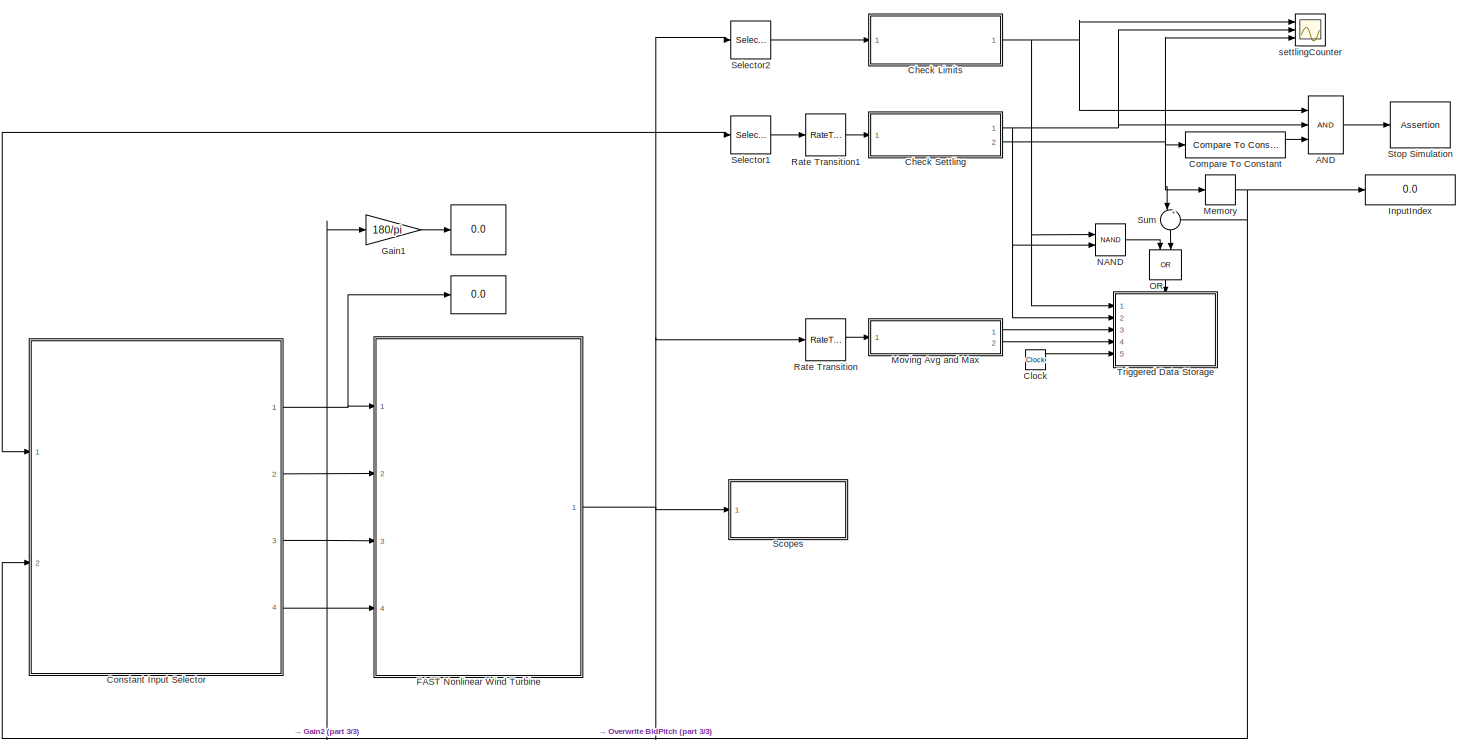
[diagram: root canvas - part 1/3, most of the canvas]
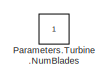
[diagram: root canvas - part 2/3, middle left region]
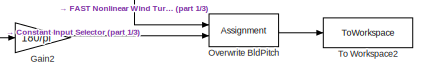
[diagram: root canvas - part 3/3, bottom center region]
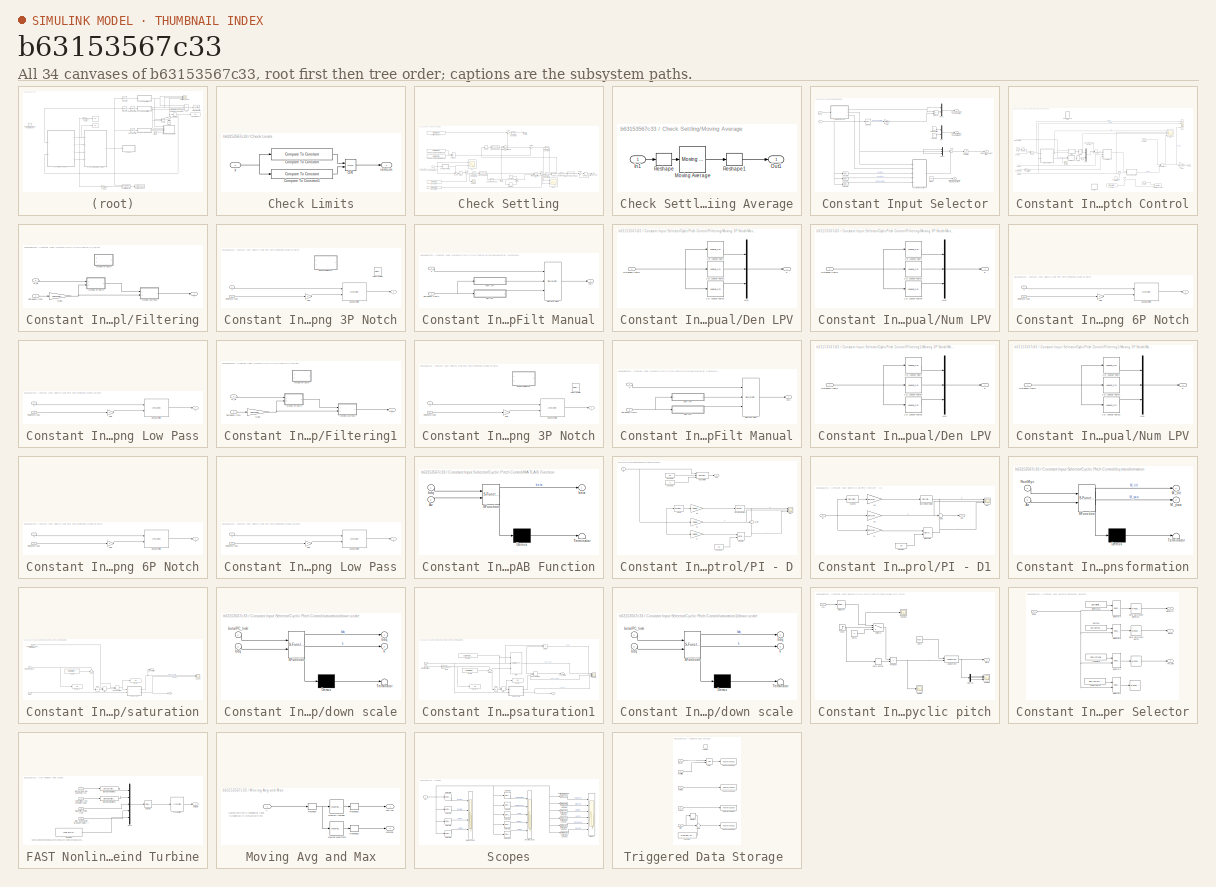
[diagram: thumbnail index - all 34 canvases of the model, root first then tree order]
MODEL slx_b63153567c33
KIND model
CONFIG AbsTol = auto
CONFIG EnableMultiTasking = off
CONFIG FixedStep = auto
CONFIG MaxStep = auto
CONFIG MinStep = auto
CONFIG RelTol = 1e-3
CONFIG SampleTimeConstraint = Unconstrained
CONFIG SolverName = ode45
CONFIG StartTime = 0.0
CONFIG StopTime = TMax
BLOCK [Display]  
  Decimation = 1
  Ports = [1]
BLOCK [Display]   
  Decimation = 1
  Ports = [1]
BLOCK [Logic] AND
  AllPortsSameDT = off
  IconShape = distinctive
  Inputs = 3
  OutDataTypeStr = boolean
  Ports = [3, 1]
BLOCK [SubSystem] Check Limits
  Ports = [1, 1]
  RequestExecContextInheritance = off
BLOCK [Reference] Check Limits/Compare To Constant  REF=simulink/Logic and Bit
Operations/Compare
To Constant
  Ports = [1, 1]
  SourceBlock = simulink/Logic and Bit\nOperations/Compare\nTo Constant
  SourceProductBaseCode = SL
  SourceType = Compare To Constant
BLOCK [Reference] Check Limits/Compare To Constant1  REF=simulink/Logic and Bit
Operations/Compare
To Constant
  Ports = [1, 1]
  SourceBlock = simulink/Logic and Bit\nOperations/Compare\nTo Constant
  SourceProductBaseCode = SL
  SourceType = Compare To Constant
BLOCK [Logic] Check Limits/OR
  AllPortsSameDT = off
  IconShape = distinctive
  Operator = NOR
  OutDataTypeStr = boolean
  Ports = [2, 1]
BLOCK [Outport] Check Limits/isInLim
BLOCK [Inport] Check Limits/y
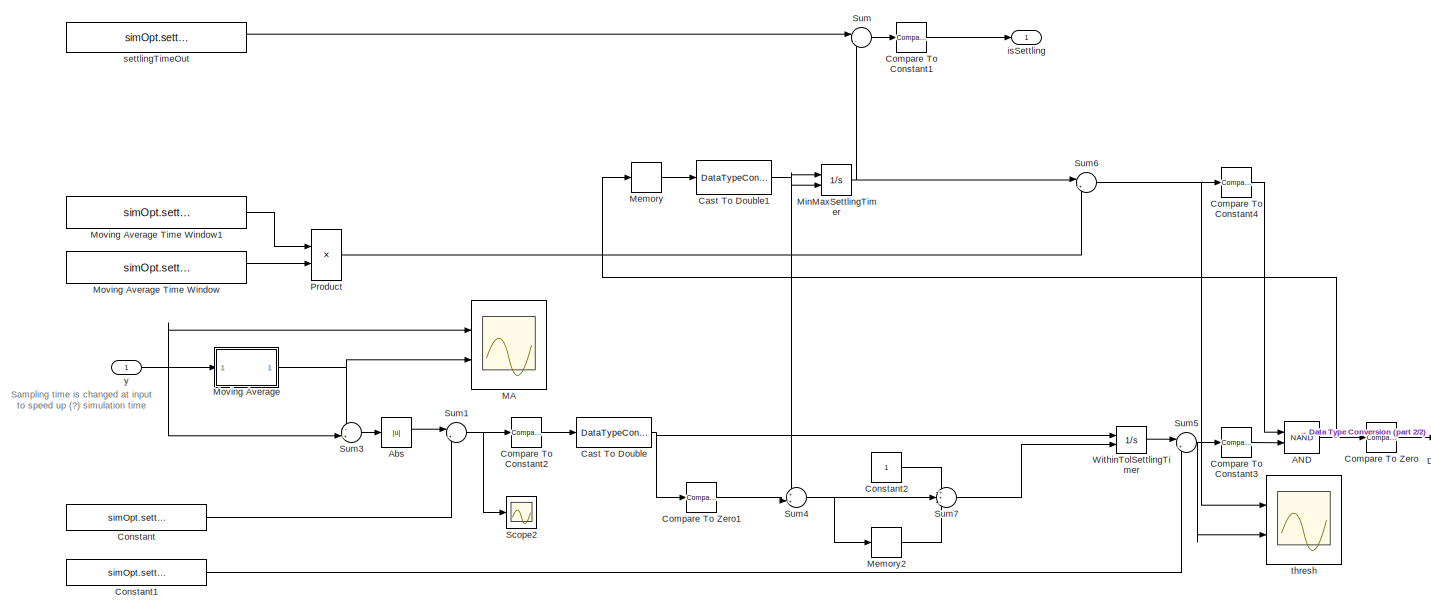
[diagram: Check Settling - part 1/2, most of the canvas]
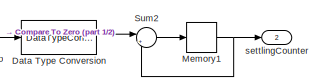
[diagram: Check Settling - part 2/2, bottom right region]
BLOCK [SubSystem] Check Settling
  Ports = [1, 2]
  RequestExecContextInheritance = off
BLOCK [Logic] Check Settling/AND
  AllPortsSameDT = off
  IconShape = distinctive
  Operator = NAND
  OutDataTypeStr = boolean
  Ports = [2, 1]
BLOCK [Abs] Check Settling/Abs
  SaturateOnIntegerOverflow = off
BLOCK [DataTypeConversion] Check Settling/Cast To Double
  OutDataTypeStr = double
  RndMeth = Floor
  SaturateOnIntegerOverflow = off
BLOCK [DataTypeConversion] Check Settling/Cast To Double1
  OutDataTypeStr = double
  RndMeth = Floor
  SaturateOnIntegerOverflow = off
BLOCK [Reference] Check Settling/Compare To Constant1  REF=simulink/Logic and Bit
Operations/Compare
To Constant
  Ports = [1, 1]
  SourceBlock = simulink/Logic and Bit\nOperations/Compare\nTo Constant
  SourceProductBaseCode = SL
  SourceType = Compare To Constant
BLOCK [Reference] Check Settling/Compare To Constant2  REF=simulink/Logic and Bit
Operations/Compare
To Constant
  Ports = [1, 1]
  SourceBlock = simulink/Logic and Bit\nOperations/Compare\nTo Constant
  SourceProductBaseCode = SL
  SourceType = Compare To Constant
BLOCK [Reference] Check Settling/Compare To Constant3  REF=simulink/Logic and Bit
Operations/Compare
To Constant
  Ports = [1, 1]
  SourceBlock = simulink/Logic and Bit\nOperations/Compare\nTo Constant
  SourceProductBaseCode = SL
  SourceType = Compare To Constant
BLOCK [Reference] Check Settling/Compare To Constant4  REF=simulink/Logic and Bit
Operations/Compare
To Constant
  Ports = [1, 1]
  SourceBlock = simulink/Logic and Bit\nOperations/Compare\nTo Constant
  SourceProductBaseCode = SL
  SourceType = Compare To Constant
BLOCK [Reference] Check Settling/Compare To Zero  REF=simulink/Logic and Bit
Operations/Compare
To Zero
  Ports = [1, 1]
  SourceBlock = simulink/Logic and Bit\nOperations/Compare\nTo Zero
  SourceProductBaseCode = SL
  SourceType = Compare To Zero
BLOCK [Reference] Check Settling/Compare To Zero1  REF=simulink/Logic and Bit
Operations/Compare
To Zero
  Ports = [1, 1]
  SourceBlock = simulink/Logic and Bit\nOperations/Compare\nTo Zero
  SourceProductBaseCode = SL
  SourceType = Compare To Zero
BLOCK [Constant] Check Settling/Constant
  Value = simOpt.settlingAbsThresh
BLOCK [Constant] Check Settling/Constant1
  Value = simOpt.settlingMinTime
BLOCK [Constant] Check Settling/Constant2
BLOCK [DataTypeConversion] Check Settling/Data Type Conversion
  RndMeth = Floor
  SaturateOnIntegerOverflow = off
BLOCK [Scope] Check Settling/MA
  Floating = off
  NumInputPorts = 2
  Ports = [2]
  ScopeSpecificationString = Simulink.scopes.TimeScopeBlockCfg('CurrentConfiguration', extmgr.ConfigurationSet(extmgr.Configuration('Core','General UI',true),extmgr.Configuration('Core','Source UI',true),extmgr.Configuration('Sources','WiredSimulink',true,'DataLoggingVariableName','ScopeData2','DataLoggingLimitDataPoints',true,'DataLoggingMaxPoints','50000'),extmgr.Configuration('Visuals','Time Domain',true,'SerializedDisplay...<+1550ch>
BLOCK [Memory] Check Settling/Memory
  InitialCondition = true
BLOCK [Memory] Check Settling/Memory1
  InheritSampleTime = on
  InitialCondition = 1
BLOCK [Memory] Check Settling/Memory2
  InheritSampleTime = on
  InitialCondition = 1
BLOCK [Integrator] Check Settling/MinMaxSettlingTimer
  ExternalReset = falling
  LimitOutput = on
  Ports = [2, 1]
  UpperSaturationLimit = max(simOpt.settlingMovAvgWindowLength*simOpt.settlingSmplTime,simOpt.settlingMaxTime)*1.01
BLOCK [SubSystem] Check Settling/Moving Average
  Ports = [1, 1]
  RequestExecContextInheritance = off
BLOCK [Constant] Check Settling/Moving Average Time Window
  Value = simOpt.settlingMovAvgWindowLength
BLOCK [Constant] Check Settling/Moving Average Time Window1
  Value = simOpt.settlingSmplTime
BLOCK [Inport] Check Settling/Moving Average/In1
BLOCK [Reference] Check Settling/Moving Average/Moving Average  REF=dspstat3/Moving
Average
  Ports = [1, 1]
  SourceBlock = dspstat3/Moving\nAverage
  SourceProductBaseCode = DS
  SourceType = dsp.simulink.MovingAverage
BLOCK [Outport] Check Settling/Moving Average/Out1
BLOCK [Reshape] Check Settling/Moving Average/Reshape
  OutputDimensionality = Row vector (2-D)
  Ports = [1, 1]
BLOCK [Reshape] Check Settling/Moving Average/Reshape1
  Ports = [1, 1]
BLOCK [Product] Check Settling/Product
  Ports = [2, 1]
BLOCK [Scope] Check Settling/Scope2
  Floating = off
  NumInputPorts = 1
  Ports = [1]
  ScopeSpecificationString = Simulink.scopes.TimeScopeBlockCfg('CurrentConfiguration', extmgr.ConfigurationSet(extmgr.Configuration('Core','General UI',true),extmgr.Configuration('Core','Source UI',true),extmgr.Configuration('Sources','WiredSimulink',true,'DataLoggingVariableName','ScopeData1','DataLoggingLimitDataPoints',true),extmgr.Configuration('Visuals','Time Domain',true,'SerializedDisplays',{struct('MinYLimReal','-0.00...<+1469ch>
BLOCK [Sum] Check Settling/Sum
  Inputs = |-+
  Ports = [2, 1]
BLOCK [Sum] Check Settling/Sum1
  Inputs = |+-
  Ports = [2, 1]
BLOCK [Sum] Check Settling/Sum2
  Inputs = |++
  Ports = [2, 1]
BLOCK [Sum] Check Settling/Sum3
  Inputs = -+|
  Ports = [2, 1]
BLOCK [Sum] Check Settling/Sum4
  Inputs = ++|
  Ports = [2, 1]
BLOCK [Sum] Check Settling/Sum5
  Inputs = |+-
  Ports = [2, 1]
BLOCK [Sum] Check Settling/Sum6
  Inputs = |+-
  Ports = [2, 1]
BLOCK [Sum] Check Settling/Sum7
  Inputs = ++-
  Ports = [3, 1]
BLOCK [Integrator] Check Settling/WithinTolSettlingTimer
  ExternalReset = falling
  LimitOutput = on
  Ports = [2, 1]
  UpperSaturationLimit = simOpt.settlingMinTime
BLOCK [Outport] Check Settling/isSettling
BLOCK [Outport] Check Settling/settlingCounter
  Port = 2
BLOCK [Constant] Check Settling/settlingTimeOut
  Value = simOpt.settlingMaxTime
BLOCK [Scope] Check Settling/thresh
  Floating = off
  NumInputPorts = 2
  Ports = [2]
  ScopeSpecificationString = Simulink.scopes.TimeScopeBlockCfg('CurrentConfiguration', extmgr.ConfigurationSet(extmgr.Configuration('Core','General UI',true),extmgr.Configuration('Core','Source UI',true),extmgr.Configuration('Sources','WiredSimulink',true,'DataLoggingVariableName','ScopeData1','DataLoggingLimitDataPoints',true,'DataLoggingMaxPoints','50000'),extmgr.Configuration('Visuals','Time Domain',true,'SerializedDisplay...<+2143ch>
BLOCK [Inport] Check Settling/y
  SampleTime = simOpt.settlingSmplTime
BLOCK [Clock] Clock
BLOCK [Reference] Compare To Constant  REF=simulink/Logic and Bit
Operations/Compare
To Constant
  Ports = [1, 1]
  SourceBlock = simulink/Logic and Bit\nOperations/Compare\nTo Constant
  SourceProductBaseCode = SL
  SourceType = Compare To Constant
BLOCK [SubSystem] Constant Input Selector
  Ports = [2, 4]
  RequestExecContextInheritance = off
BLOCK [Outport] Constant Input Selector/Blade Pitch Angles (rad)
  Port = 3
BLOCK [Constant] Constant Input Selector/Brake
  Value = 100
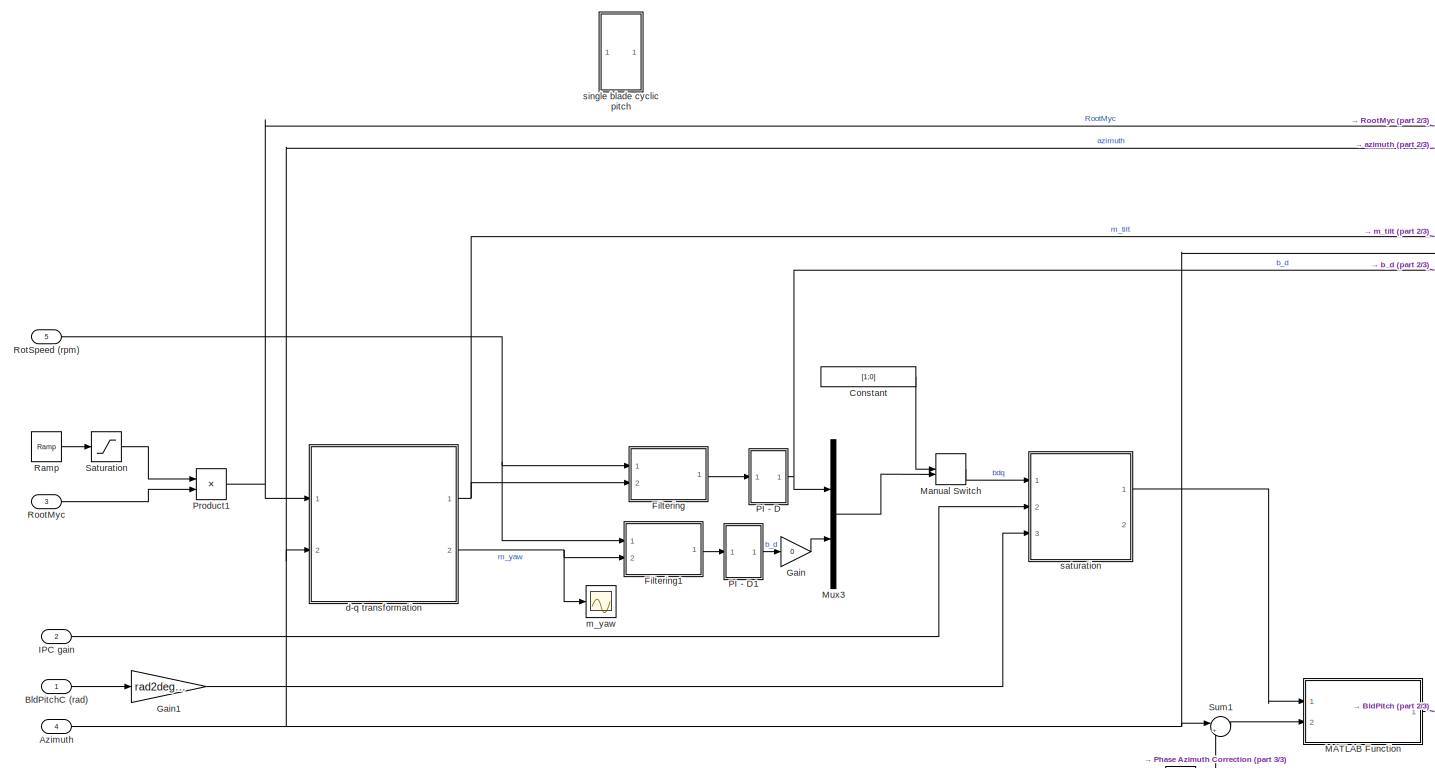
[diagram: Constant Input Selector/Cyclic Pitch Control - part 1/3, center side, full height]
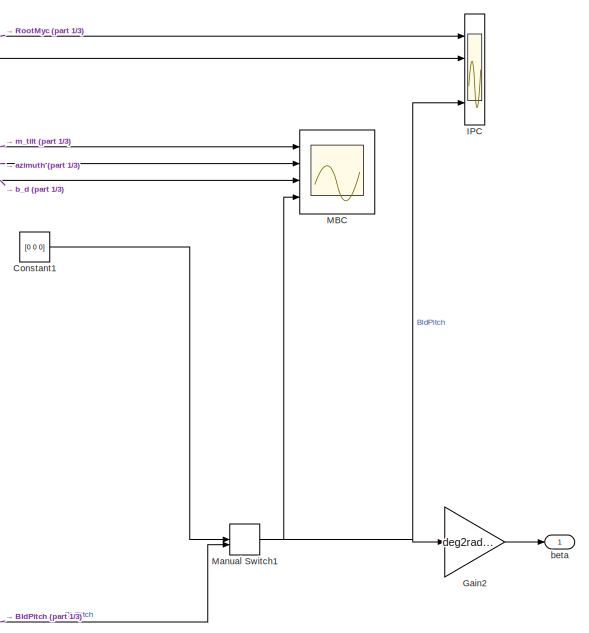
[diagram: Constant Input Selector/Cyclic Pitch Control - part 2/3, middle right region]
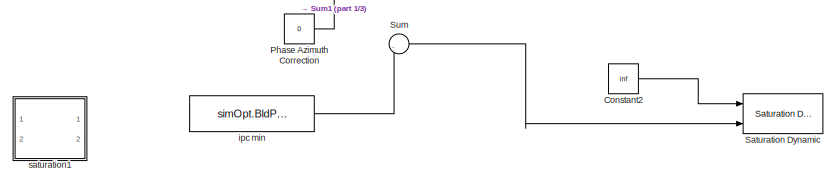
[diagram: Constant Input Selector/Cyclic Pitch Control - part 3/3, bottom center region]
BLOCK [SubSystem] Constant Input Selector/Cyclic Pitch Control
  Ports = [5, 1]
  RequestExecContextInheritance = off
BLOCK [Inport] Constant Input Selector/Cyclic Pitch Control/Azimuth
  Port = 4
BLOCK [Inport] Constant Input Selector/Cyclic Pitch Control/BldPitchC (rad)
BLOCK [Constant] Constant Input Selector/Cyclic Pitch Control/Constant
  Value = [1;0]
BLOCK [Constant] Constant Input Selector/Cyclic Pitch Control/Constant1
  Value = [0 0 0]
BLOCK [Constant] Constant Input Selector/Cyclic Pitch Control/Constant2
  Commented = on
  Value = inf
BLOCK [SubSystem] Constant Input Selector/Cyclic Pitch Control/Filtering
  Ports = [2, 1]
  RequestExecContextInheritance = off
BLOCK [Gain] Constant Input Selector/Cyclic Pitch Control/Filtering/Gain1
  Gain = rpm2radDs
BLOCK [SubSystem] Constant Input Selector/Cyclic Pitch Control/Filtering/Moving 3P Notch
  Ports = [2, 1]
  RequestExecContextInheritance = off
BLOCK [Gain] Constant Input Selector/Cyclic Pitch Control/Filtering/Moving 3P Notch/Gain
  Gain = 3
BLOCK [SubSystem] Constant Input Selector/Cyclic Pitch Control/Filtering/Moving 3P Notch/Moving 3P Filt Manual
  Commented = on
  Ports = [2, 1]
  RequestExecContextInheritance = off
BLOCK [SubSystem] Constant Input Selector/Cyclic Pitch Control/Filtering/Moving 3P Notch/Moving 3P Filt Manual/Den LPV
  Ports = [1, 1]
  RequestExecContextInheritance = off
BLOCK [Lookup_n-D] Constant Input Selector/Cyclic Pitch Control/Filtering/Moving 3P Notch/Moving 3P Filt Manual/Den LPV/1-D Lookup Table
  BeginIndexSearchUsingPreviousIndexResult = on
  BreakpointsForDimension1 = Parameter.Control.cIPC.PSM0_NF_3P.om_3P
  ExtrapMethod = Clip
  InputPortMap = u0
  InternalRulePriority = Speed
  NumberOfTableDimensions = 1
  Ports = [1, 1]
  RndMeth = Simplest
  Table = Parameter.Control.cIPC.PSM0_NF_3P.a_2
BLOCK [Lookup_n-D] Constant Input Selector/Cyclic Pitch Control/Filtering/Moving 3P Notch/Moving 3P Filt Manual/Den LPV/1-D Lookup Table1
  BeginIndexSearchUsingPreviousIndexResult = on
  BreakpointsForDimension1 = Parameter.Control.cIPC.PSM0_NF_3P.om_3P
  ExtrapMethod = Clip
  InputPortMap = u0
  InternalRulePriority = Speed
  NumberOfTableDimensions = 1
  Ports = [1, 1]
  RndMeth = Simplest
  Table = Parameter.Control.cIPC.PSM0_NF_3P.a_1
BLOCK [Lookup_n-D] Constant Input Selector/Cyclic Pitch Control/Filtering/Moving 3P Notch/Moving 3P Filt Manual/Den LPV/1-D Lookup Table2
  BeginIndexSearchUsingPreviousIndexResult = on
  BreakpointsForDimension1 = Parameter.Control.cIPC.PSM0_NF_3P.om_3P
  ExtrapMethod = Clip
  InputPortMap = u0
  InternalRulePriority = Speed
  NumberOfTableDimensions = 1
  Ports = [1, 1]
  RndMeth = Simplest
  Table = Parameter.Control.cIPC.PSM0_NF_3P.a_0
BLOCK [Mux] Constant Input Selector/Cyclic Pitch Control/Filtering/Moving 3P Notch/Moving 3P Filt Manual/Den LPV/Mux
  DisplayOption = bar
  Inputs = 3
  Ports = [3, 1]
BLOCK [Inport] Constant Input Selector/Cyclic Pitch Control/Filtering/Moving 3P Notch/Moving 3P Filt Manual/Den LPV/RotSpeed (rad//s)
BLOCK [Outport] Constant Input Selector/Cyclic Pitch Control/Filtering/Moving 3P Notch/Moving 3P Filt Manual/Den LPV/a
  VectorParamsAs1DForOutWhenUnconnected = off
BLOCK [DiscreteFilter] Constant Input Selector/Cyclic Pitch Control/Filtering/Moving 3P Notch/Moving 3P Filt Manual/Discrete Filter
  DenominatorSource = Input port
  InputPortMap = u0,p1,p3
  NumeratorSource = Input port
  Ports = [3, 1]
  a0EqualsOne = on
BLOCK [SubSystem] Constant Input Selector/Cyclic Pitch Control/Filtering/Moving 3P Notch/Moving 3P Filt Manual/Num LPV
  Ports = [1, 1]
  RequestExecContextInheritance = off
BLOCK [Lookup_n-D] Constant Input Selector/Cyclic Pitch Control/Filtering/Moving 3P Notch/Moving 3P Filt Manual/Num LPV/1-D Lookup Table
  BeginIndexSearchUsingPreviousIndexResult = on
  BreakpointsForDimension1 = Parameter.Control.cIPC.PSM0_NF_3P.om_3P
  ExtrapMethod = Clip
  InputPortMap = u0
  InternalRulePriority = Speed
  NumberOfTableDimensions = 1
  Ports = [1, 1]
  RndMeth = Simplest
  Table = Parameter.Control.cIPC.PSM0_NF_3P.b_2
BLOCK [Lookup_n-D] Constant Input Selector/Cyclic Pitch Control/Filtering/Moving 3P Notch/Moving 3P Filt Manual/Num LPV/1-D Lookup Table1
  BeginIndexSearchUsingPreviousIndexResult = on
  BreakpointsForDimension1 = Parameter.Control.cIPC.PSM0_NF_3P.om_3P
  ExtrapMethod = Clip
  InputPortMap = u0
  InternalRulePriority = Speed
  NumberOfTableDimensions = 1
  Ports = [1, 1]
  RndMeth = Simplest
  Table = Parameter.Control.cIPC.PSM0_NF_3P.b_1
BLOCK [Lookup_n-D] Constant Input Selector/Cyclic Pitch Control/Filtering/Moving 3P Notch/Moving 3P Filt Manual/Num LPV/1-D Lookup Table2
  BeginIndexSearchUsingPreviousIndexResult = on
  BreakpointsForDimension1 = Parameter.Control.cIPC.PSM0_NF_3P.om_3P
  ExtrapMethod = Clip
  InputPortMap = u0
  InternalRulePriority = Speed
  NumberOfTableDimensions = 1
  Ports = [1, 1]
  RndMeth = Simplest
  Table = Parameter.Control.cIPC.PSM0_NF_3P.b_0
BLOCK [Mux] Constant Input Selector/Cyclic Pitch Control/Filtering/Moving 3P Notch/Moving 3P Filt Manual/Num LPV/Mux
  DisplayOption = bar
  Inputs = 3
  Ports = [3, 1]
BLOCK [Inport] Constant Input Selector/Cyclic Pitch Control/Filtering/Moving 3P Notch/Moving 3P Filt Manual/Num LPV/RotSpeed (rad//s)
BLOCK [Outport] Constant Input Selector/Cyclic Pitch Control/Filtering/Moving 3P Notch/Moving 3P Filt Manual/Num LPV/b
  VectorParamsAs1DForOutWhenUnconnected = off
BLOCK [Outport] Constant Input Selector/Cyclic Pitch Control/Filtering/Moving 3P Notch/Moving 3P Filt Manual/Out1
  VectorParamsAs1DForOutWhenUnconnected = off
BLOCK [Inport] Constant Input Selector/Cyclic Pitch Control/Filtering/Moving 3P Notch/Moving 3P Filt Manual/RotSpeed (rad//s)
  Port = 2
BLOCK [Inport] Constant Input Selector/Cyclic Pitch Control/Filtering/Moving 3P Notch/Moving 3P Filt Manual/u
BLOCK [Reference] Constant Input Selector/Cyclic Pitch Control/Filtering/Moving 3P Notch/Moving 3P Filter  REF=cstblocks/Linear Parameter Varying/LPV System
  Ports = [2, 1]
  SourceBlock = cstblocks/Linear Parameter Varying/LPV System
  SourceProductBaseCode = CT
  SourceType = LPV Block
BLOCK [RateTransition] Constant Input Selector/Cyclic Pitch Control/Filtering/Moving 3P Notch/Rate Transition
  Commented = on
  OutPortSampleTime = DT
BLOCK [Inport] Constant Input Selector/Cyclic Pitch Control/Filtering/Moving 3P Notch/RotSpeed (rad//s)
  Port = 2
BLOCK [Inport] Constant Input Selector/Cyclic Pitch Control/Filtering/Moving 3P Notch/u
BLOCK [Outport] Constant Input Selector/Cyclic Pitch Control/Filtering/Moving 3P Notch/y
  VectorParamsAs1DForOutWhenUnconnected = off
BLOCK [SubSystem] Constant Input Selector/Cyclic Pitch Control/Filtering/Moving 6P Notch
  Commented = on
  Ports = [2, 1]
  RequestExecContextInheritance = off
BLOCK [Gain] Constant Input Selector/Cyclic Pitch Control/Filtering/Moving 6P Notch/Gain
  Gain = 6
BLOCK [Reference] Constant Input Selector/Cyclic Pitch Control/Filtering/Moving 6P Notch/Moving 6P Filter  REF=cstblocks/Linear Parameter Varying/LPV System
  Ports = [2, 1]
  SourceBlock = cstblocks/Linear Parameter Varying/LPV System
  SourceProductBaseCode = CT
  SourceType = LPV Block
BLOCK [Inport] Constant Input Selector/Cyclic Pitch Control/Filtering/Moving 6P Notch/RotSpeed (rad//s)
  Port = 2
BLOCK [Inport] Constant Input Selector/Cyclic Pitch Control/Filtering/Moving 6P Notch/u
BLOCK [Outport] Constant Input Selector/Cyclic Pitch Control/Filtering/Moving 6P Notch/y
  VectorParamsAs1DForOutWhenUnconnected = off
BLOCK [SubSystem] Constant Input Selector/Cyclic Pitch Control/Filtering/Moving Low Pass
  Ports = [2, 1]
  RequestExecContextInheritance = off
BLOCK [Gain] Constant Input Selector/Cyclic Pitch Control/Filtering/Moving Low Pass/Gain
  Gain = 3
BLOCK [Reference] Constant Input Selector/Cyclic Pitch Control/Filtering/Moving Low Pass/Moving 6P Filter  REF=cstblocks/Linear Parameter Varying/LPV System
  Ports = [2, 1]
  SourceBlock = cstblocks/Linear Parameter Varying/LPV System
  SourceProductBaseCode = CT
  SourceType = LPV Block
BLOCK [Inport] Constant Input Selector/Cyclic Pitch Control/Filtering/Moving Low Pass/RotSpeed (rad//s)
  Port = 2
BLOCK [Inport] Constant Input Selector/Cyclic Pitch Control/Filtering/Moving Low Pass/u
BLOCK [Outport] Constant Input Selector/Cyclic Pitch Control/Filtering/Moving Low Pass/y
  VectorParamsAs1DForOutWhenUnconnected = off
BLOCK [Inport] Constant Input Selector/Cyclic Pitch Control/Filtering/RotSpeed (rpm)
BLOCK [Inport] Constant Input Selector/Cyclic Pitch Control/Filtering/m_tilt
  Port = 2
BLOCK [Outport] Constant Input Selector/Cyclic Pitch Control/Filtering/y
BLOCK [SubSystem] Constant Input Selector/Cyclic Pitch Control/Filtering1
  Ports = [2, 1]
  RequestExecContextInheritance = off
BLOCK [Gain] Constant Input Selector/Cyclic Pitch Control/Filtering1/Gain1
  Gain = rpm2radDs
BLOCK [SubSystem] Constant Input Selector/Cyclic Pitch Control/Filtering1/Moving 3P Notch
  Ports = [2, 1]
  RequestExecContextInheritance = off
BLOCK [Gain] Constant Input Selector/Cyclic Pitch Control/Filtering1/Moving 3P Notch/Gain
  Gain = 3
BLOCK [SubSystem] Constant Input Selector/Cyclic Pitch Control/Filtering1/Moving 3P Notch/Moving 3P Filt Manual
  Commented = on
  Ports = [2, 1]
  RequestExecContextInheritance = off
BLOCK [SubSystem] Constant Input Selector/Cyclic Pitch Control/Filtering1/Moving 3P Notch/Moving 3P Filt Manual/Den LPV
  Ports = [1, 1]
  RequestExecContextInheritance = off
BLOCK [Lookup_n-D] Constant Input Selector/Cyclic Pitch Control/Filtering1/Moving 3P Notch/Moving 3P Filt Manual/Den LPV/1-D Lookup Table
  BeginIndexSearchUsingPreviousIndexResult = on
  BreakpointsForDimension1 = Parameter.Control.cIPC.PSM0_NF_3P.om_3P
  ExtrapMethod = Clip
  InputPortMap = u0
  InternalRulePriority = Speed
  NumberOfTableDimensions = 1
  Ports = [1, 1]
  RndMeth = Simplest
  Table = Parameter.Control.cIPC.PSM0_NF_3P.a_2
BLOCK [Lookup_n-D] Constant Input Selector/Cyclic Pitch Control/Filtering1/Moving 3P Notch/Moving 3P Filt Manual/Den LPV/1-D Lookup Table1
  BeginIndexSearchUsingPreviousIndexResult = on
  BreakpointsForDimension1 = Parameter.Control.cIPC.PSM0_NF_3P.om_3P
  ExtrapMethod = Clip
  InputPortMap = u0
  InternalRulePriority = Speed
  NumberOfTableDimensions = 1
  Ports = [1, 1]
  RndMeth = Simplest
  Table = Parameter.Control.cIPC.PSM0_NF_3P.a_1
BLOCK [Lookup_n-D] Constant Input Selector/Cyclic Pitch Control/Filtering1/Moving 3P Notch/Moving 3P Filt Manual/Den LPV/1-D Lookup Table2
  BeginIndexSearchUsingPreviousIndexResult = on
  BreakpointsForDimension1 = Parameter.Control.cIPC.PSM0_NF_3P.om_3P
  ExtrapMethod = Clip
  InputPortMap = u0
  InternalRulePriority = Speed
  NumberOfTableDimensions = 1
  Ports = [1, 1]
  RndMeth = Simplest
  Table = Parameter.Control.cIPC.PSM0_NF_3P.a_0
BLOCK [Mux] Constant Input Selector/Cyclic Pitch Control/Filtering1/Moving 3P Notch/Moving 3P Filt Manual/Den LPV/Mux
  DisplayOption = bar
  Inputs = 3
  Ports = [3, 1]
BLOCK [Inport] Constant Input Selector/Cyclic Pitch Control/Filtering1/Moving 3P Notch/Moving 3P Filt Manual/Den LPV/RotSpeed (rad//s)
BLOCK [Outport] Constant Input Selector/Cyclic Pitch Control/Filtering1/Moving 3P Notch/Moving 3P Filt Manual/Den LPV/a
  VectorParamsAs1DForOutWhenUnconnected = off
BLOCK [DiscreteFilter] Constant Input Selector/Cyclic Pitch Control/Filtering1/Moving 3P Notch/Moving 3P Filt Manual/Discrete Filter
  DenominatorSource = Input port
  InputPortMap = u0,p1,p3
  NumeratorSource = Input port
  Ports = [3, 1]
  a0EqualsOne = on
BLOCK [SubSystem] Constant Input Selector/Cyclic Pitch Control/Filtering1/Moving 3P Notch/Moving 3P Filt Manual/Num LPV
  Ports = [1, 1]
  RequestExecContextInheritance = off
BLOCK [Lookup_n-D] Constant Input Selector/Cyclic Pitch Control/Filtering1/Moving 3P Notch/Moving 3P Filt Manual/Num LPV/1-D Lookup Table
  BeginIndexSearchUsingPreviousIndexResult = on
  BreakpointsForDimension1 = Parameter.Control.cIPC.PSM0_NF_3P.om_3P
  ExtrapMethod = Clip
  InputPortMap = u0
  InternalRulePriority = Speed
  NumberOfTableDimensions = 1
  Ports = [1, 1]
  RndMeth = Simplest
  Table = Parameter.Control.cIPC.PSM0_NF_3P.b_2
BLOCK [Lookup_n-D] Constant Input Selector/Cyclic Pitch Control/Filtering1/Moving 3P Notch/Moving 3P Filt Manual/Num LPV/1-D Lookup Table1
  BeginIndexSearchUsingPreviousIndexResult = on
  BreakpointsForDimension1 = Parameter.Control.cIPC.PSM0_NF_3P.om_3P
  ExtrapMethod = Clip
  InputPortMap = u0
  InternalRulePriority = Speed
  NumberOfTableDimensions = 1
  Ports = [1, 1]
  RndMeth = Simplest
  Table = Parameter.Control.cIPC.PSM0_NF_3P.b_1
BLOCK [Lookup_n-D] Constant Input Selector/Cyclic Pitch Control/Filtering1/Moving 3P Notch/Moving 3P Filt Manual/Num LPV/1-D Lookup Table2
  BeginIndexSearchUsingPreviousIndexResult = on
  BreakpointsForDimension1 = Parameter.Control.cIPC.PSM0_NF_3P.om_3P
  ExtrapMethod = Clip
  InputPortMap = u0
  InternalRulePriority = Speed
  NumberOfTableDimensions = 1
  Ports = [1, 1]
  RndMeth = Simplest
  Table = Parameter.Control.cIPC.PSM0_NF_3P.b_0
BLOCK [Mux] Constant Input Selector/Cyclic Pitch Control/Filtering1/Moving 3P Notch/Moving 3P Filt Manual/Num LPV/Mux
  DisplayOption = bar
  Inputs = 3
  Ports = [3, 1]
BLOCK [Inport] Constant Input Selector/Cyclic Pitch Control/Filtering1/Moving 3P Notch/Moving 3P Filt Manual/Num LPV/RotSpeed (rad//s)
BLOCK [Outport] Constant Input Selector/Cyclic Pitch Control/Filtering1/Moving 3P Notch/Moving 3P Filt Manual/Num LPV/b
  VectorParamsAs1DForOutWhenUnconnected = off
BLOCK [Outport] Constant Input Selector/Cyclic Pitch Control/Filtering1/Moving 3P Notch/Moving 3P Filt Manual/Out1
  VectorParamsAs1DForOutWhenUnconnected = off
BLOCK [Inport] Constant Input Selector/Cyclic Pitch Control/Filtering1/Moving 3P Notch/Moving 3P Filt Manual/RotSpeed (rad//s)
  Port = 2
BLOCK [Inport] Constant Input Selector/Cyclic Pitch Control/Filtering1/Moving 3P Notch/Moving 3P Filt Manual/u
BLOCK [Reference] Constant Input Selector/Cyclic Pitch Control/Filtering1/Moving 3P Notch/Moving 3P Filter  REF=cstblocks/Linear Parameter Varying/LPV System
  Ports = [2, 1]
  SourceBlock = cstblocks/Linear Parameter Varying/LPV System
  SourceProductBaseCode = CT
  SourceType = LPV Block
BLOCK [RateTransition] Constant Input Selector/Cyclic Pitch Control/Filtering1/Moving 3P Notch/Rate Transition
  Commented = on
  OutPortSampleTime = DT
BLOCK [Inport] Constant Input Selector/Cyclic Pitch Control/Filtering1/Moving 3P Notch/RotSpeed (rad//s)
  Port = 2
BLOCK [Inport] Constant Input Selector/Cyclic Pitch Control/Filtering1/Moving 3P Notch/u
BLOCK [Outport] Constant Input Selector/Cyclic Pitch Control/Filtering1/Moving 3P Notch/y
  VectorParamsAs1DForOutWhenUnconnected = off
BLOCK [SubSystem] Constant Input Selector/Cyclic Pitch Control/Filtering1/Moving 6P Notch
  Commented = on
  Ports = [2, 1]
  RequestExecContextInheritance = off
BLOCK [Gain] Constant Input Selector/Cyclic Pitch Control/Filtering1/Moving 6P Notch/Gain
  Gain = 6
BLOCK [Reference] Constant Input Selector/Cyclic Pitch Control/Filtering1/Moving 6P Notch/Moving 6P Filter  REF=cstblocks/Linear Parameter Varying/LPV System
  Ports = [2, 1]
  SourceBlock = cstblocks/Linear Parameter Varying/LPV System
  SourceProductBaseCode = CT
  SourceType = LPV Block
BLOCK [Inport] Constant Input Selector/Cyclic Pitch Control/Filtering1/Moving 6P Notch/RotSpeed (rad//s)
  Port = 2
BLOCK [Inport] Constant Input Selector/Cyclic Pitch Control/Filtering1/Moving 6P Notch/u
BLOCK [Outport] Constant Input Selector/Cyclic Pitch Control/Filtering1/Moving 6P Notch/y
  VectorParamsAs1DForOutWhenUnconnected = off
BLOCK [SubSystem] Constant Input Selector/Cyclic Pitch Control/Filtering1/Moving Low Pass
  Ports = [2, 1]
  RequestExecContextInheritance = off
BLOCK [Gain] Constant Input Selector/Cyclic Pitch Control/Filtering1/Moving Low Pass/Gain
  Gain = 3
BLOCK [Reference] Constant Input Selector/Cyclic Pitch Control/Filtering1/Moving Low Pass/Moving 6P Filter  REF=cstblocks/Linear Parameter Varying/LPV System
  Ports = [2, 1]
  SourceBlock = cstblocks/Linear Parameter Varying/LPV System
  SourceProductBaseCode = CT
  SourceType = LPV Block
BLOCK [Inport] Constant Input Selector/Cyclic Pitch Control/Filtering1/Moving Low Pass/RotSpeed (rad//s)
  Port = 2
BLOCK [Inport] Constant Input Selector/Cyclic Pitch Control/Filtering1/Moving Low Pass/u
BLOCK [Outport] Constant Input Selector/Cyclic Pitch Control/Filtering1/Moving Low Pass/y
  VectorParamsAs1DForOutWhenUnconnected = off
BLOCK [Inport] Constant Input Selector/Cyclic Pitch Control/Filtering1/RotSpeed (rpm)
BLOCK [Inport] Constant Input Selector/Cyclic Pitch Control/Filtering1/m_tilt
  Port = 2
BLOCK [Outport] Constant Input Selector/Cyclic Pitch Control/Filtering1/y
BLOCK [Gain] Constant Input Selector/Cyclic Pitch Control/Gain
  Gain = 0
BLOCK [Gain] Constant Input Selector/Cyclic Pitch Control/Gain1
  Gain = rad2deg(1)
BLOCK [Gain] Constant Input Selector/Cyclic Pitch Control/Gain2
  Gain = deg2rad(1)
BLOCK [Scope] Constant Input Selector/Cyclic Pitch Control/IPC
  Floating = off
  NumInputPorts = 4
  Ports = [4]
  ScopeSpecificationString = Simulink.scopes.TimeScopeBlockCfg('CurrentConfiguration', extmgr.ConfigurationSet(extmgr.Configuration('Core','General UI',true),extmgr.Configuration('Core','Source UI',true),extmgr.Configuration('Sources','WiredSimulink',true,'DataLoggingVariableName','ScopeData1','DataLoggingLimitDataPoints',true,'DataLoggingMaxPoints','10000'),extmgr.Configuration('Visuals','Time Domain',true,'SerializedDisplay...<+3600ch>
BLOCK [Inport] Constant Input Selector/Cyclic Pitch Control/IPC gain
  Port = 2
BLOCK [SubSystem] Constant Input Selector/Cyclic Pitch Control/MATLAB Function
  ErrorFcn = Stateflow.Translate.translate
  PermitHierarchicalResolution = ExplicitOnly
  Ports = [2, 1]
  RequestExecContextInheritance = off
  SFBlockType = MATLAB Function
  TreatAsAtomicUnit = on
BLOCK [Demux] Constant Input Selector/Cyclic Pitch Control/MATLAB Function/ Demux 
  Outputs = 1
  Ports = [1, 1]
BLOCK [S-Function] Constant Input Selector/Cyclic Pitch Control/MATLAB Function/ SFunction 
  EnableBusSupport = on
  FunctionName = sf_sfun
  PortCounts = [2 2]
  Ports = [2, 2]
  SFcnIsStateOwnerBlock = off
  SFunctionDeploymentMode = off
  Tag = Stateflow S-Function 2
BLOCK [Terminator] Constant Input Selector/Cyclic Pitch Control/MATLAB Function/ Terminator 
BLOCK [Inport] Constant Input Selector/Cyclic Pitch Control/MATLAB Function/Az
  Port = 2
BLOCK [Inport] Constant Input Selector/Cyclic Pitch Control/MATLAB Function/bdq
BLOCK [Outport] Constant Input Selector/Cyclic Pitch Control/MATLAB Function/beta
BLOCK [Scope] Constant Input Selector/Cyclic Pitch Control/MBC
  Floating = off
  NumInputPorts = 4
  Ports = [4]
  ScopeSpecificationString = Simulink.scopes.TimeScopeBlockCfg('CurrentConfiguration', extmgr.ConfigurationSet(extmgr.Configuration('Core','General UI',true),extmgr.Configuration('Core','Source UI',true),extmgr.Configuration('Sources','WiredSimulink',true,'DataLoggingVariableName','ScopeData3','DataLoggingLimitDataPoints',true,'DataLoggingMaxPoints','10000'),extmgr.Configuration('Visuals','Time Domain',true,'SerializedDisplay...<+3575ch>
BLOCK [ManualSwitch] Constant Input Selector/Cyclic Pitch Control/Manual Switch
  CurrentSetting = 0
BLOCK [ManualSwitch] Constant Input Selector/Cyclic Pitch Control/Manual Switch1
  CurrentSetting = 0
BLOCK [Mux] Constant Input Selector/Cyclic Pitch Control/Mux3
  DisplayOption = bar
  Inputs = 2
  Ports = [2, 1]
BLOCK [SubSystem] Constant Input Selector/Cyclic Pitch Control/PI - D
  Ports = [1, 1]
  RequestExecContextInheritance = off
BLOCK [Constant] Constant Input Selector/Cyclic Pitch Control/PI - D/Constant
  Commented = on
  Value = 16
BLOCK [Constant] Constant Input Selector/Cyclic Pitch Control/PI - D/Constant1
  Value = 50
BLOCK [Constant] Constant Input Selector/Cyclic Pitch Control/PI - D/Constant2
  Value = 0
BLOCK [Scope] Constant Input Selector/Cyclic Pitch Control/PI - D/DPI
  Commented = on
  Floating = off
  NumInputPorts = 3
  Ports = [3]
  ScopeSpecificationString = Simulink.scopes.TimeScopeBlockCfg('CurrentConfiguration', extmgr.ConfigurationSet(extmgr.Configuration('Core','General UI',true),extmgr.Configuration('Core','Source UI',true),extmgr.Configuration('Sources','WiredSimulink',true,'DataLoggingVariableName','ScopeData1','DataLoggingLimitDataPoints',true),extmgr.Configuration('Visuals','Time Domain',true,'SerializedDisplays',{struct('MinYLimReal','-1.00...<+2745ch>
BLOCK [Reference] Constant Input Selector/Cyclic Pitch Control/PI - D/Discrete Derivative  REF=simulink/Discrete/Discrete Derivative
  Commented = on
  Ports = [1, 1]
  SourceBlock = simulink/Discrete/Discrete Derivative
  SourceProductBaseCode = SL
  SourceType = Discrete Derivative
BLOCK [DiscreteIntegrator] Constant Input Selector/Cyclic Pitch Control/PI - D/Integrator
  Commented = on
  ICPrevOutput = DiscIntNeverNeededParam
  ICPrevScaledInput = DiscIntNeverNeededParam
  InitialConditionSource = external
  IntegratorMethod = Integration: Backward Euler
  LowerSaturationLimit = 0
  Ports = [2, 1]
  SampleTime = -1
  UpperSaturationLimit = 1.570796/(.008068634/9.5492966)/(1./(1.+pi/2/.109997))
  gainval = 1
BLOCK [Gain] Constant Input Selector/Cyclic Pitch Control/PI - D/Kd
  Commented = on
  Gain = simOpt.SLipc.DQ_Kd_1P
BLOCK [Gain] Constant Input Selector/Cyclic Pitch Control/PI - D/Ki
  Commented = on
  Gain = simOpt.SLipc.DQ_Ki_1P
BLOCK [Gain] Constant Input Selector/Cyclic Pitch Control/PI - D/Kp
  Commented = on
  Gain = simOpt.SLipc.DQ_Kp_1P
BLOCK [Reference] Constant Input Selector/Cyclic Pitch Control/PI - D/PID Controller  REF=slpidlib/PID Controller
  Ports = [3, 1]
  SourceBlock = slpidlib/PID Controller
  SourceProductBaseCode = SL
  SourceType = PID 1dof
BLOCK [Sum] Constant Input Selector/Cyclic Pitch Control/PI - D/Sum3
  Commented = on
  Inputs = +++
  Ports = [3, 1]
BLOCK [DiscreteFilter] Constant Input Selector/Cyclic Pitch Control/PI - D/Wderiv
  Commented = on
  Denominator = simOpt.SLipc.Wderiv.Denominator{1}
  InputPortMap = u0
  Numerator = simOpt.SLipc.Wderiv.Numerator{1}
  Ports = [1, 1]
BLOCK [Inport] Constant Input Selector/Cyclic Pitch Control/PI - D/in
BLOCK [Outport] Constant Input Selector/Cyclic Pitch Control/PI - D/out
  VectorParamsAs1DForOutWhenUnconnected = off
BLOCK [SubSystem] Constant Input Selector/Cyclic Pitch Control/PI - D1
  Ports = [1, 1]
  RequestExecContextInheritance = off
BLOCK [Constant] Constant Input Selector/Cyclic Pitch Control/PI - D1/Constant
  Value = 25
BLOCK [Scope] Constant Input Selector/Cyclic Pitch Control/PI - D1/DPI
  Floating = off
  NumInputPorts = 3
  Ports = [3]
  ScopeSpecificationString = Simulink.scopes.TimeScopeBlockCfg('CurrentConfiguration', extmgr.ConfigurationSet(extmgr.Configuration('Core','General UI',true),extmgr.Configuration('Core','Source UI',true),extmgr.Configuration('Sources','WiredSimulink',true,'DataLoggingVariableName','ScopeData1','DataLoggingLimitDataPoints',true),extmgr.Configuration('Visuals','Time Domain',true,'SerializedDisplays',{struct('MinYLimReal','-1.00...<+2722ch>
BLOCK [Reference] Constant Input Selector/Cyclic Pitch Control/PI - D1/Discrete Derivative  REF=simulink/Discrete/Discrete Derivative
  Ports = [1, 1]
  SourceBlock = simulink/Discrete/Discrete Derivative
  SourceProductBaseCode = SL
  SourceType = Discrete Derivative
BLOCK [DiscreteIntegrator] Constant Input Selector/Cyclic Pitch Control/PI - D1/Integrator
  ICPrevOutput = DiscIntNeverNeededParam
  ICPrevScaledInput = DiscIntNeverNeededParam
  InitialConditionSource = external
  IntegratorMethod = Integration: Backward Euler
  LowerSaturationLimit = 0
  Ports = [2, 1]
  SampleTime = -1
  UpperSaturationLimit = 1.570796/(.008068634/9.5492966)/(1./(1.+pi/2/.109997))
  gainval = 1
BLOCK [Gain] Constant Input Selector/Cyclic Pitch Control/PI - D1/Kd
  Gain = simOpt.SLipc.DQ_Kd_1P
BLOCK [Gain] Constant Input Selector/Cyclic Pitch Control/PI - D1/Ki
  Gain = simOpt.SLipc.DQ_Ki_1P
BLOCK [Gain] Constant Input Selector/Cyclic Pitch Control/PI - D1/Kp
  Gain = simOpt.SLipc.DQ_Kp_1P
BLOCK [Sum] Constant Input Selector/Cyclic Pitch Control/PI - D1/Sum3
  Inputs = +++
  Ports = [3, 1]
BLOCK [DiscreteFilter] Constant Input Selector/Cyclic Pitch Control/PI - D1/Wderiv
  Denominator = simOpt.SLipc.Wderiv.Denominator{1}
  InputPortMap = u0
  Numerator = simOpt.SLipc.Wderiv.Numerator{1}
  Ports = [1, 1]
BLOCK [Inport] Constant Input Selector/Cyclic Pitch Control/PI - D1/in
BLOCK [Outport] Constant Input Selector/Cyclic Pitch Control/PI - D1/out
  VectorParamsAs1DForOutWhenUnconnected = off
BLOCK [Constant] Constant Input Selector/Cyclic Pitch Control/Phase Azimuth Correction
  Value = 0
BLOCK [Product] Constant Input Selector/Cyclic Pitch Control/Product1
  Ports = [2, 1]
BLOCK [Reference] Constant Input Selector/Cyclic Pitch Control/Ramp  REF=simulink/Sources/Ramp
  Ports = [0, 1]
  SourceBlock = simulink/Sources/Ramp
  SourceProductBaseCode = SL
  SourceType = Ramp
BLOCK [Inport] Constant Input Selector/Cyclic Pitch Control/RootMyc
  Port = 3
BLOCK [Inport] Constant Input Selector/Cyclic Pitch Control/RotSpeed (rpm)
  Port = 5
BLOCK [Saturate] Constant Input Selector/Cyclic Pitch Control/Saturation
  LowerLimit = 0
  UpperLimit = 1
BLOCK [Reference] Constant Input Selector/Cyclic Pitch Control/Saturation Dynamic  REF=simulink/Discontinuities/Saturation
Dynamic
  Commented = on
  Ports = [3, 1]
  SourceBlock = simulink/Discontinuities/Saturation\nDynamic
  SourceProductBaseCode = SL
  SourceType = Saturation Dynamic
BLOCK [Sum] Constant Input Selector/Cyclic Pitch Control/Sum
  Commented = on
  Inputs = |-+
  Ports = [2, 1]
BLOCK [Sum] Constant Input Selector/Cyclic Pitch Control/Sum1
  Inputs = |++
  Ports = [2, 1]
BLOCK [Outport] Constant Input Selector/Cyclic Pitch Control/beta
BLOCK [SubSystem] Constant Input Selector/Cyclic Pitch Control/d-q transformation
  ErrorFcn = Stateflow.Translate.translate
  PermitHierarchicalResolution = ExplicitOnly
  Ports = [2, 2]
  RequestExecContextInheritance = off
  SFBlockType = MATLAB Function
  TreatAsAtomicUnit = on
BLOCK [Demux] Constant Input Selector/Cyclic Pitch Control/d-q transformation/ Demux 
  Outputs = 1
  Ports = [1, 1]
BLOCK [S-Function] Constant Input Selector/Cyclic Pitch Control/d-q transformation/ SFunction 
  EnableBusSupport = on
  FunctionName = sf_sfun
  PortCounts = [2 3]
  Ports = [2, 3]
  SFcnIsStateOwnerBlock = off
  SFunctionDeploymentMode = off
  Tag = Stateflow S-Function 25
BLOCK [Terminator] Constant Input Selector/Cyclic Pitch Control/d-q transformation/ Terminator 
BLOCK [Inport] Constant Input Selector/Cyclic Pitch Control/d-q transformation/Az
  Port = 2
BLOCK [Outport] Constant Input Selector/Cyclic Pitch Control/d-q transformation/M_tilt
  VectorParamsAs1DForOutWhenUnconnected = off
BLOCK [Outport] Constant Input Selector/Cyclic Pitch Control/d-q transformation/M_yaw
  Port = 2
  VectorParamsAs1DForOutWhenUnconnected = off
BLOCK [Inport] Constant Input Selector/Cyclic Pitch Control/d-q transformation/RootMyc
BLOCK [Constant] Constant Input Selector/Cyclic Pitch Control/ipc min
  Commented = on
  Value = simOpt.BldPitch_min
BLOCK [Scope] Constant Input Selector/Cyclic Pitch Control/m_yaw
  Floating = off
  NumInputPorts = 1
  Ports = [1]
  ScopeSpecificationString = Simulink.scopes.TimeScopeBlockCfg('CurrentConfiguration', extmgr.ConfigurationSet(extmgr.Configuration('Core','General UI',true),extmgr.Configuration('Core','Source UI',true),extmgr.Configuration('Sources','WiredSimulink',true,'DataLoggingVariableName','ScopeData1'),extmgr.Configuration('Visuals','Time Domain',true,'SerializedDisplays',{struct('MinYLimReal','-37549.33949','MaxYLimReal','27472.6490...<+1617ch>
BLOCK [SubSystem] Constant Input Selector/Cyclic Pitch Control/saturation
  Ports = [3, 2]
  RequestExecContextInheritance = off
BLOCK [Abs] Constant Input Selector/Cyclic Pitch Control/saturation/Abs
  SaturateOnIntegerOverflow = off
BLOCK [Inport] Constant Input Selector/Cyclic Pitch Control/saturation/BldPitchC (deg)
  Port = 3
BLOCK [Display] Constant Input Selector/Cyclic Pitch Control/saturation/Display
  Decimation = 1
  Ports = [1]
BLOCK [Display] Constant Input Selector/Cyclic Pitch Control/saturation/Display1
  Decimation = 1
  Ports = [1]
BLOCK [Inport] Constant Input Selector/Cyclic Pitch Control/saturation/IPCbldPitch_abs_max (deg)
  Port = 2
BLOCK [ManualSwitch] Constant Input Selector/Cyclic Pitch Control/saturation/Manual Switch
BLOCK [MinMax] Constant Input Selector/Cyclic Pitch Control/saturation/Min
  Inputs = 2
  Ports = [2, 1]
BLOCK [Scope] Constant Input Selector/Cyclic Pitch Control/saturation/Scope
  Floating = off
  NumInputPorts = 2
  Ports = [2]
  ScopeSpecificationString = Simulink.scopes.TimeScopeBlockCfg('CurrentConfiguration', extmgr.ConfigurationSet(extmgr.Configuration('Core','General UI',true),extmgr.Configuration('Core','Source UI',true),extmgr.Configuration('Sources','WiredSimulink',true,'DataLoggingVariableName','ScopeData1'),extmgr.Configuration('Visuals','Time Domain',true,'SerializedDisplays',{struct('MinYLimReal','-0.25','MaxYLimReal','2.25','YLabelReal...<+2068ch>
BLOCK [Sum] Constant Input Selector/Cyclic Pitch Control/saturation/Sum1
  Inputs = -+|
  Ports = [2, 1]
BLOCK [Inport] Constant Input Selector/Cyclic Pitch Control/saturation/bdq
BLOCK [Outport] Constant Input Selector/Cyclic Pitch Control/saturation/bdq_limited
BLOCK [SubSystem] Constant Input Selector/Cyclic Pitch Control/saturation/down scale
  ErrorFcn = Stateflow.Translate.translate
  PermitHierarchicalResolution = ExplicitOnly
  Ports = [2, 2]
  RequestExecContextInheritance = off
  SFBlockType = MATLAB Function
  TreatAsAtomicUnit = on
BLOCK [Demux] Constant Input Selector/Cyclic Pitch Control/saturation/down scale/ Demux 
  Outputs = 1
  Ports = [1, 1]
BLOCK [S-Function] Constant Input Selector/Cyclic Pitch Control/saturation/down scale/ SFunction 
  EnableBusSupport = on
  FunctionName = sf_sfun
  PortCounts = [2 3]
  Ports = [2, 3]
  SFcnIsStateOwnerBlock = off
  SFunctionDeploymentMode = off
  Tag = Stateflow S-Function 1
BLOCK [Terminator] Constant Input Selector/Cyclic Pitch Control/saturation/down scale/ Terminator 
BLOCK [Outport] Constant Input Selector/Cyclic Pitch Control/saturation/down scale/bdq
BLOCK [Inport] Constant Input Selector/Cyclic Pitch Control/saturation/down scale/bdq 
  Port = 2
BLOCK [Inport] Constant Input Selector/Cyclic Pitch Control/saturation/down scale/betaIPC_limit
BLOCK [Outport] Constant Input Selector/Cyclic Pitch Control/saturation/down scale/k
  Port = 2
BLOCK [Constant] Constant Input Selector/Cyclic Pitch Control/saturation/ipc min
  Value = simOpt.BldPitch_min
BLOCK [Outport] Constant Input Selector/Cyclic Pitch Control/saturation/k
  Port = 2
BLOCK [SubSystem] Constant Input Selector/Cyclic Pitch Control/saturation1
  Commented = on
  Ports = [2, 2]
  RequestExecContextInheritance = off
BLOCK [Abs] Constant Input Selector/Cyclic Pitch Control/saturation1/Abs
  SaturateOnIntegerOverflow = off
BLOCK [Inport] Constant Input Selector/Cyclic Pitch Control/saturation1/BldPitchC (rad)
  Port = 2
BLOCK [Display] Constant Input Selector/Cyclic Pitch Control/saturation1/Display
  Decimation = 1
  Ports = [1]
BLOCK [Display] Constant Input Selector/Cyclic Pitch Control/saturation1/Display1
  Decimation = 1
  Ports = [1]
BLOCK [Product] Constant Input Selector/Cyclic Pitch Control/saturation1/Divide
  Inputs = /*
  Ports = [2, 1]
BLOCK [Gain] Constant Input Selector/Cyclic Pitch Control/saturation1/Gain
  Gain = rad2deg(1)
BLOCK [ManualSwitch] Constant Input Selector/Cyclic Pitch Control/saturation1/Manual Switch
  CurrentSetting = 0
BLOCK [MinMax] Constant Input Selector/Cyclic Pitch Control/saturation1/Min
  Inputs = 2
  Ports = [2, 1]
BLOCK [Scope] Constant Input Selector/Cyclic Pitch Control/saturation1/Scope
  Floating = off
  NumInputPorts = 4
  Ports = [4]
  ScopeSpecificationString = Simulink.scopes.TimeScopeBlockCfg('CurrentConfiguration', extmgr.ConfigurationSet(extmgr.Configuration('Core','General UI',true),extmgr.Configuration('Core','Source UI',true),extmgr.Configuration('Sources','WiredSimulink',true,'DataLoggingVariableName','ScopeData1'),extmgr.Configuration('Visuals','Time Domain',true,'SerializedDisplays',{struct('MinYLimReal','-1.25','MaxYLimReal','11.25','YLabelRea...<+3430ch>
BLOCK [Sum] Constant Input Selector/Cyclic Pitch Control/saturation1/Sum1
  Inputs = -+|
  Ports = [2, 1]
BLOCK [Inport] Constant Input Selector/Cyclic Pitch Control/saturation1/bdq
BLOCK [Outport] Constant Input Selector/Cyclic Pitch Control/saturation1/bdq_limited
BLOCK [SubSystem] Constant Input Selector/Cyclic Pitch Control/saturation1/down scale
  ErrorFcn = Stateflow.Translate.translate
  PermitHierarchicalResolution = ExplicitOnly
  Ports = [2, 2]
  RequestExecContextInheritance = off
  SFBlockType = MATLAB Function
  TreatAsAtomicUnit = on
BLOCK [Demux] Constant Input Selector/Cyclic Pitch Control/saturation1/down scale/ Demux 
  Outputs = 1
  Ports = [1, 1]
BLOCK [S-Function] Constant Input Selector/Cyclic Pitch Control/saturation1/down scale/ SFunction 
  EnableBusSupport = on
  FunctionName = sf_sfun
  PortCounts = [2 3]
  Ports = [2, 3]
  SFcnIsStateOwnerBlock = off
  SFunctionDeploymentMode = off
  Tag = Stateflow S-Function 3
BLOCK [Terminator] Constant Input Selector/Cyclic Pitch Control/saturation1/down scale/ Terminator 
BLOCK [Outport] Constant Input Selector/Cyclic Pitch Control/saturation1/down scale/bdq
BLOCK [Inport] Constant Input Selector/Cyclic Pitch Control/saturation1/down scale/bdq 
  Port = 2
BLOCK [Inport] Constant Input Selector/Cyclic Pitch Control/saturation1/down scale/betaIPC_limit
BLOCK [Outport] Constant Input Selector/Cyclic Pitch Control/saturation1/down scale/k
  Port = 2
BLOCK [Constant] Constant Input Selector/Cyclic Pitch Control/saturation1/ipc max
  Value = SLin.IPCbldPitch_abs_max
BLOCK [Constant] Constant Input Selector/Cyclic Pitch Control/saturation1/ipc min
  Value = simOpt.BldPitch_min
BLOCK [Outport] Constant Input Selector/Cyclic Pitch Control/saturation1/k
  Port = 2
BLOCK [Reference] Constant Input Selector/Cyclic Pitch Control/saturation1/limit  REF=simulink/Discontinuities/Saturation
Dynamic
  Ports = [3, 1]
  SourceBlock = simulink/Discontinuities/Saturation\nDynamic
  SourceProductBaseCode = SL
  SourceType = Saturation Dynamic
BLOCK [SubSystem] Constant Input Selector/Cyclic Pitch Control/single blade cyclic pitch
  Commented = on
  Ports = [1, 1]
  RequestExecContextInheritance = off
BLOCK [Assignment] Constant Input Selector/Cyclic Pitch Control/single blade cyclic pitch/Assignment
  DiagnosticForDimensions = Warning
  IndexOptions = Index vector (dialog)
  Indices = 1
  OutputSizes = 1
  Ports = [2, 1]
BLOCK [Demux] Constant Input Selector/Cyclic Pitch Control/single blade cyclic pitch/Demux
  Outputs = 3
  Ports = [1, 3]
BLOCK [Inport] Constant Input Selector/Cyclic Pitch Control/single blade cyclic pitch/In1
BLOCK [Outport] Constant Input Selector/Cyclic Pitch Control/single blade cyclic pitch/Out1
BLOCK [Product] Constant Input Selector/Cyclic Pitch Control/single blade cyclic pitch/Product
  Ports = [2, 1]
BLOCK [RateLimiter] Constant Input Selector/Cyclic Pitch Control/single blade cyclic pitch/Rate Limiter
  RisingSlewLimit = 0.1
  SampleTimeMode = inherited
BLOCK [Scope] Constant Input Selector/Cyclic Pitch Control/single blade cyclic pitch/Scope
  Floating = off
  NumInputPorts = 1
  Ports = [1]
  ScopeSpecificationString = Simulink.scopes.TimeScopeBlockCfg('CurrentConfiguration', extmgr.ConfigurationSet(extmgr.Configuration('Core','General UI',true),extmgr.Configuration('Core','Source UI',true),extmgr.Configuration('Sources','WiredSimulink',true,'DataLoggingVariableName','ScopeData1'),extmgr.Configuration('Visuals','Time Domain',true,'SerializedDisplays',{struct('MinYLimReal','-0.125','MaxYLimReal','0.125','YLabelRe...<+1456ch>
BLOCK [Scope] Constant Input Selector/Cyclic Pitch Control/single blade cyclic pitch/Scope1
  Floating = off
  NumInputPorts = 3
  Ports = [3]
  ScopeSpecificationString = Simulink.scopes.TimeScopeBlockCfg('CurrentConfiguration', extmgr.ConfigurationSet(extmgr.Configuration('Core','General UI',true),extmgr.Configuration('Core','Source UI',true),extmgr.Configuration('Sources','WiredSimulink',true,'DataLoggingVariableName','ScopeData2'),extmgr.Configuration('Visuals','Time Domain',true,'SerializedDisplays',{struct('MinYLimReal','-0.125','MaxYLimReal','0.125','YLabelRe...<+2738ch>
BLOCK [Scope] Constant Input Selector/Cyclic Pitch Control/single blade cyclic pitch/Scope2
  Floating = off
  NumInputPorts = 1
  Ports = [1]
  ScopeSpecificationString = Simulink.scopes.TimeScopeBlockCfg('CurrentConfiguration', extmgr.ConfigurationSet(extmgr.Configuration('Core','General UI',true),extmgr.Configuration('Core','Source UI',true),extmgr.Configuration('Sources','WiredSimulink',true,'DataLoggingVariableName','ScopeData3'),extmgr.Configuration('Visuals','Time Domain',true,'SerializedDisplays',{struct('MinYLimReal','-0.125','MaxYLimReal','0.125','YLabelRe...<+1457ch>
BLOCK [Selector] Constant Input Selector/Cyclic Pitch Control/single blade cyclic pitch/Selector
  IndexOptions = Index vector (dialog)
  Indices = [1]
  InputPortWidth = 3
  OutputSizes = 1
  Ports = [1, 1]
BLOCK [Step] Constant Input Selector/Cyclic Pitch Control/single blade cyclic pitch/Step
  SampleTime = 0
  Time = 80
BLOCK [Switch] Constant Input Selector/Cyclic Pitch Control/single blade cyclic pitch/Switch1
  Criteria = u2 > Threshold
  InputSameDT = off
  SaturateOnIntegerOverflow = off
BLOCK [Constant] Constant Input Selector/Cyclic Pitch Control/single blade cyclic pitch/Zero
  OutDataTypeStr = Inherit: Inherit via back propagation
  Value = [0 0 0]
BLOCK [Constant] Constant Input Selector/Cyclic Pitch Control/single blade cyclic pitch/Zero1
  OutDataTypeStr = Inherit: Inherit via back propagation
  Value = 0
BLOCK [Gain] Constant Input Selector/Gain
  Gain = pi/30
BLOCK [Outport] Constant Input Selector/Gen. Torque (Nm) and Power (W)
BLOCK [Outport] Constant Input Selector/High-Speed Shaft Braking Fraction (-)
  Port = 4
BLOCK [Mux] Constant Input Selector/Mux
  DisplayOption = bar
  Inputs = 2
  Ports = [2, 1]
BLOCK [Mux] Constant Input Selector/Mux1
  DisplayOption = bar
  Inputs = 2
  Ports = [2, 1]
BLOCK [Mux] Constant Input Selector/Mux2
  DisplayOption = bar
  Inputs = 3
  Ports = [3, 1]
BLOCK [SubSystem] Constant Input Selector/Parameter Selector
  Ports = [1, 3]
  RequestExecContextInheritance = off
BLOCK [Reference] Constant Input Selector/Parameter Selector/   REF=dspstat3/Moving
Average
  NameLocation = right
  Ports = [1, 1]
  SourceBlock = dspstat3/Moving\nAverage
  SourceProductBaseCode = DS
  SourceType = dsp.simulink.MovingAverage
BLOCK [Reference] Constant Input Selector/Parameter Selector/    REF=dspstat3/Moving
Average
  Commented = on
  Ports = [1, 1]
  SourceBlock = dspstat3/Moving\nAverage
  SourceProductBaseCode = DS
  SourceType = dsp.simulink.MovingAverage
BLOCK [Outport] Constant Input Selector/Parameter Selector/BldPitchC
  Port = 2
BLOCK [Constant] Constant Input Selector/Parameter Selector/BldPitchCAll
  Value = SLin.BldPitchC(:)
BLOCK [Outport] Constant Input Selector/Parameter Selector/GenTq
BLOCK [Constant] Constant Input Selector/Parameter Selector/GenTqAll
  Value = SLin.GenTq(:)
BLOCK [Outport] Constant Input Selector/Parameter Selector/IPC gain
  Port = 3
BLOCK [Constant] Constant Input Selector/Parameter Selector/IPCgainAll
  Value = SLin.IPCgain(:)
BLOCK [Constant] Constant Input Selector/Parameter Selector/IPCoffsetAll
  Commented = on
  Value = SLin.IPCoffset(:)
BLOCK [Reference] Constant Input Selector/Parameter Selector/Rate Saturation BldPitchC  REF=dspstat3/Moving
Average
  Ports = [1, 1]
  SourceBlock = dspstat3/Moving\nAverage
  SourceProductBaseCode = DS
  SourceType = dsp.simulink.MovingAverage
BLOCK [Reference] Constant Input Selector/Parameter Selector/Rate Saturation GenTq  REF=dspstat3/Moving
Average
  Ports = [1, 1]
  SourceBlock = dspstat3/Moving\nAverage
  SourceProductBaseCode = DS
  SourceType = dsp.simulink.MovingAverage
BLOCK [Selector] Constant Input Selector/Parameter Selector/Selector1
  IndexOptions = Index vector (port)
  Indices = simOpt.i_outRotSpeed
  InputPortWidth = SLin.n_step
  OutputSizes = 1
  Ports = [2, 1]
BLOCK [Selector] Constant Input Selector/Parameter Selector/Selector2
  Commented = on
  IndexOptions = Index vector (port)
  Indices = simOpt.i_outRotSpeed
  InputPortWidth = SLin.n_step
  OutputSizes = 1
  Ports = [2, 1]
BLOCK [Selector] Constant Input Selector/Parameter Selector/Selector3
  IndexOptions = Index vector (port)
  Indices = simOpt.i_outRotSpeed
  InputPortWidth = SLin.n_step
  OutputSizes = 1
  Ports = [2, 1]
BLOCK [Selector] Constant Input Selector/Parameter Selector/Selector4
  IndexOptions = Index vector (port)
  Indices = simOpt.i_outRotSpeed
  InputPortWidth = SLin.n_step
  OutputSizes = 1
  Ports = [2, 1]
BLOCK [Inport] Constant Input Selector/Parameter Selector/index
BLOCK [Product] Constant Input Selector/Product
  Ports = [2, 1]
BLOCK [Saturate] Constant Input Selector/Saturation
  LowerLimit = deg2rad(simOpt.BldPitch_min)
  UpperLimit = inf
BLOCK [Selector] Constant Input Selector/Selector
  IndexOptions = Index vector (dialog)
  Indices = simOpt.idx.y.GenSpeed
  InputPortWidth = simOpt.n_out
  OutputSizes = 1
  Ports = [1, 1]
BLOCK [Selector] Constant Input Selector/Selector1
  IndexOptions = Index vector (dialog)
  Indices = simOpt.idx.y.RotSpeed
  InputPortWidth = simOpt.n_out
  OutputSizes = 1
  Ports = [1, 1]
BLOCK [Selector] Constant Input Selector/Selector5
  IndexOptions = Index vector (dialog)
  Indices = [simOpt.idx.y.RootMyc1 simOpt.idx.y.RootMyc2 simOpt.idx.y.RootMyc3]
  InputPortWidth = simOpt.n_out
  OutputSizes = 1
  Ports = [1, 1]
BLOCK [Selector] Constant Input Selector/Selector7
  IndexOptions = Index vector (dialog)
  Indices = simOpt.idx.y.Azimuth
  InputPortWidth = simOpt.n_out
  OutputSizes = 1
  Ports = [1, 1]
BLOCK [Sum] Constant Input Selector/Sum
  Inputs = |++
  Ports = [2, 1]
BLOCK [Outport] Constant Input Selector/Yaw Position (rad) and Rate (rad//s)
  Port = 2
BLOCK [Constant] Constant Input Selector/YawPosition
  Value = 0
BLOCK [Constant] Constant Input Selector/YawRate
  Value = 0
BLOCK [Inport] Constant Input Selector/index
  Port = 2
BLOCK [Inport] Constant Input Selector/y
BLOCK [SubSystem] FAST Nonlinear Wind Turbine
  Ports = [4, 1]
  RequestExecContextInheritance = off
BLOCK [Inport] FAST Nonlinear Wind Turbine/Blade Pitch Angles (rad)
  Port = 3
BLOCK [Constant] FAST Nonlinear Wind Turbine/Constant
  Value = [SLin.extra;0]
BLOCK [Inport] FAST Nonlinear Wind Turbine/Gen. Torque (Nm) and Power (W)
BLOCK [Inport] FAST Nonlinear Wind Turbine/High-Speed Shaft Braking Fraction (-)
  Port = 4
BLOCK [Mux] FAST Nonlinear Wind Turbine/Mux1
  DisplayOption = bar
  Inputs = 5
  Ports = [5, 1]
BLOCK [Outport] FAST Nonlinear Wind Turbine/OutData
  VectorParamsAs1DForOutWhenUnconnected = off
BLOCK [S-Function] FAST Nonlinear Wind Turbine/S-Function
  EnableBusSupport = off
  FunctionName = FAST_SFunc
  Parameters = simOpt.FSTnewInputFile, simOpt.SLmaxTime, 0
  Ports = [1, 1]
  SFcnIsStateOwnerBlock = off
  SFunctionDeploymentMode = off
BLOCK [Selector] FAST Nonlinear Wind Turbine/Selector
  IndexOptions = Index vector (dialog)
  Indices = 1:(8+numel(SLin.extra))
  InputPortWidth = 9+numel(SLin.extra)
  OutputSizes = 1
  Ports = [1, 1]
BLOCK [SignalSpecification] FAST Nonlinear Wind Turbine/Signal Specification1
  Dimensions = 2
  OutDataTypeStr = double
  SignalType = real
BLOCK [SignalSpecification] FAST Nonlinear Wind Turbine/Signal Specification2
  Dimensions = 2
  OutDataTypeStr = double
  SignalType = real
BLOCK [Inport] FAST Nonlinear Wind Turbine/Yaw Position (rad) and Rate (rad//s)
  Port = 2
BLOCK [Gain] Gain1
  Gain = 180/pi
BLOCK [Gain] Gain2
  Gain = 180/pi
BLOCK [Display] InputIndex
  Decimation = 1
  Ports = [1]
BLOCK [Memory] Memory
  InitialCondition = 1
BLOCK [SubSystem] Moving Avg and Max
  Ports = [1, 2]
  RequestExecContextInheritance = off
BLOCK [Reference] Moving Avg and Max/Moving Average  REF=dspstat3/Moving
Average
  Ports = [1, 1]
  SourceBlock = dspstat3/Moving\nAverage
  SourceProductBaseCode = DS
  SourceType = dsp.simulink.MovingAverage
BLOCK [Reference] Moving Avg and Max/Moving Maximum  REF=dspstat3/Moving
Maximum
  Ports = [1, 1]
  SourceBlock = dspstat3/Moving\nMaximum
  SourceProductBaseCode = DS
  SourceType = dsp.MovingMaximum
BLOCK [Reshape] Moving Avg and Max/Reshape
  OutputDimensionality = Row vector (2-D)
  Ports = [1, 1]
BLOCK [Reshape] Moving Avg and Max/Reshape1
  Ports = [1, 1]
BLOCK [Reshape] Moving Avg and Max/Reshape2
  Ports = [1, 1]
BLOCK [Outport] Moving Avg and Max/outAvg
BLOCK [Outport] Moving Avg and Max/outMax
  Port = 2
BLOCK [Inport] Moving Avg and Max/y
  SampleTime = simOpt.settlingSmplTime
BLOCK [Logic] NAND
  AllPortsSameDT = off
  IconShape = distinctive
  Operator = NAND
  OutDataTypeStr = boolean
  Ports = [2, 1]
BLOCK [Logic] OR
  AllPortsSameDT = off
  IconShape = distinctive
  NameLocation = left
  Operator = OR
  OutDataTypeStr = boolean
  Ports = [2, 1]
BLOCK [Assignment] Overwrite BldPitch
  DiagnosticForDimensions = Warning
  IndexOptions = Index vector (dialog)
  Indices = [simOpt.idx.y.BldPitch1 simOpt.idx.y.BldPitch2 simOpt.idx.y.BldPitch3]
  OutputSizes = 1
  Ports = [2, 1]
BLOCK [Constant] Parameters.Turbine.NumBlades
  IOType = siggen
BLOCK [RateTransition] Rate Transition
BLOCK [RateTransition] Rate Transition1
BLOCK [SubSystem] Scopes
  Ports = [1]
  RequestExecContextInheritance = off
BLOCK [Scope] Scopes/Blade Loads
  Floating = off
  NumInputPorts = 4
  Ports = [4]
  ScopeSpecificationString = Simulink.scopes.TimeScopeBlockCfg('CurrentConfiguration', extmgr.ConfigurationSet(extmgr.Configuration('Core','General UI',true),extmgr.Configuration('Core','Source UI',true),extmgr.Configuration('Sources','WiredSimulink',true,'DataLoggingVariableName','ScopeData2','DataLoggingLimitDataPoints',true,'DataLoggingMaxPoints','50000'),extmgr.Configuration('Visuals','Time Domain',true,'SerializedDisplay...<+3696ch>
BLOCK [Inport] Scopes/In1
BLOCK [Scope] Scopes/Nacelle Loads
  Floating = off
  NumInputPorts = 5
  Ports = [5]
  ScopeSpecificationString = Simulink.scopes.TimeScopeBlockCfg('CurrentConfiguration', extmgr.ConfigurationSet(extmgr.Configuration('Core','General UI',true),extmgr.Configuration('Core','Source UI',true),extmgr.Configuration('Sources','WiredSimulink',true,'DataLoggingVariableName','ScopeData4','DataLoggingLimitDataPoints',true,'DataLoggingMaxPoints','50000'),extmgr.Configuration('Visuals','Time Domain',true,'SerializedDisplay...<+5113ch>
BLOCK [Selector] Scopes/Selector10
  IndexOptions = Index vector (dialog)
  Indices = [simOpt.idx.y.Azimuth]
  InputPortWidth = simOpt.n_out
  OutputSizes = 1
  Ports = [1, 1]
BLOCK [Selector] Scopes/Selector11
  IndexOptions = Index vector (dialog)
  Indices = [simOpt.idx.y.BldPitch1 simOpt.idx.y.BldPitch2 simOpt.idx.y.BldPitch3]
  InputPortWidth = simOpt.n_out
  OutputSizes = 1
  Ports = [1, 1]
BLOCK [Selector] Scopes/Selector12
  IndexOptions = Index vector (dialog)
  Indices = [simOpt.idx.y.YawBrMyp simOpt.idx.y.YawBrMzp]
  InputPortWidth = simOpt.n_out
  OutputSizes = 1
  Ports = [1, 1]
BLOCK [Selector] Scopes/Selector3
  IndexOptions = Index vector (dialog)
  Indices = [simOpt.idx.y.RootMyc1 simOpt.idx.y.RootMyc2 simOpt.idx.y.RootMyc3]
  InputPortWidth = simOpt.n_out
  OutputSizes = 1
  Ports = [1, 1]
BLOCK [Selector] Scopes/Selector4
  IndexOptions = Index vector (dialog)
  Indices = [simOpt.idx.y.RootMzc1 simOpt.idx.y.RootMzc2 simOpt.idx.y.RootMzc3]
  InputPortWidth = simOpt.n_out
  OutputSizes = 1
  Ports = [1, 1]
BLOCK [Selector] Scopes/Selector5
  IndexOptions = Index vector (dialog)
  Indices = [simOpt.idx.y.Azimuth]
  InputPortWidth = simOpt.n_out
  OutputSizes = 1
  Ports = [1, 1]
BLOCK [Selector] Scopes/Selector6
  IndexOptions = Index vector (dialog)
  Indices = [simOpt.idx.y.BldPitch1 simOpt.idx.y.BldPitch2 simOpt.idx.y.BldPitch3]
  InputPortWidth = simOpt.n_out
  OutputSizes = 1
  Ports = [1, 1]
BLOCK [Selector] Scopes/Selector8
  IndexOptions = Index vector (dialog)
  Indices = [simOpt.idx.y.LSSTipMya simOpt.idx.y.LSSTipMza]
  InputPortWidth = simOpt.n_out
  OutputSizes = 1
  Ports = [1, 1]
BLOCK [Selector] Scopes/Selector9
  IndexOptions = Index vector (dialog)
  Indices = [simOpt.idx.y.LSSTipMys simOpt.idx.y.LSSTipMzs]
  InputPortWidth = simOpt.n_out
  OutputSizes = 1
  Ports = [1, 1]
BLOCK [Scope] Scopes/WTout
  Floating = off
  NumInputPorts = 6
  Ports = [6]
  ScopeSpecificationString = Simulink.scopes.TimeScopeBlockCfg('CurrentConfiguration', extmgr.ConfigurationSet(extmgr.Configuration('Core','General UI',true),extmgr.Configuration('Core','Source UI',true),extmgr.Configuration('Sources','WiredSimulink',true,'DataLoggingVariableName','ScopeData1','DataLoggingLimitDataPoints',true,'DataLoggingMaxPoints','50000'),extmgr.Configuration('Visuals','Time Domain',true,'SerializedDisplay...<+3607ch>
BLOCK [Fcn] Scopes/extract HSS speed1
  Expr = u(strmatch('Wind1VelX',simOpt.FSToutNameArr))
BLOCK [Fcn] Scopes/extract HSS speed2
  Expr = u(strmatch('BldPitch1',simOpt.FSToutNameArr))
BLOCK [Fcn] Scopes/extract HSS speed3
  Expr = u(strmatch('GenTq',simOpt.FSToutNameArr))
BLOCK [Fcn] Scopes/extract HSS speed4
  Expr = u(strmatch('GenSpeed',simOpt.FSToutNameArr))
BLOCK [Fcn] Scopes/extract HSS speed5
  Expr = u(strmatch('GenPwr',simOpt.FSToutNameArr))
BLOCK [Fcn] Scopes/extract RotSpeed
  Expr = u(strmatch('RotSpeed',simOpt.FSToutNameArr))
BLOCK [Selector] Selector1
  IndexOptions = Index vector (dialog)
  Indices = simOpt.idx.y.settling
  InputPortWidth = simOpt.n_out
  OutputSizes = 1
  Ports = [1, 1]
BLOCK [Selector] Selector2
  IndexOptions = Index vector (dialog)
  Indices = simOpt.idx.y.limCheck
  InputPortWidth = simOpt.n_out
  OutputSizes = 1
  Ports = [1, 1]
BLOCK [Assertion] Stop Simulation
  AssertionFailFcn = set_param(bdroot,'SimulationCommand','stop')
  StopWhenAssertionFail = off
BLOCK [Sum] Sum
  Inputs = |+-
  NameLocation = left
  Ports = [2, 1]
BLOCK [ToWorkspace] To Workspace2
  FixptAsFi = on
  MaxDataPoints = simOpt.settlingMovAvgWindowLength*5
  Ports = [1]
  SampleTime = -1
  VariableName = outSnippet
BLOCK [SubSystem] Triggered Data Storage 
  Ports = [5, 0, 0, 1]
  RequestExecContextInheritance = off
  TreatAsAtomicUnit = on
BLOCK [Logic] Triggered Data Storage /AND
  AllPortsSameDT = off
  IconShape = distinctive
  OutDataTypeStr = boolean
  Ports = [2, 1]
BLOCK [Constant] Triggered Data Storage /Constant
  Value = 2*simOpt.SLsmplTime
BLOCK [Memory] Triggered Data Storage /Memory
  InheritSampleTime = on
BLOCK [Sum] Triggered Data Storage /Sum
  Inputs = -+-
  Ports = [3, 1]
BLOCK [ToWorkspace] Triggered Data Storage /To Workspace
  FixptAsFi = on
  MaxDataPoints = inf
  Ports = [1]
  SampleTime = -1
  VariableName = outAvg
BLOCK [ToWorkspace] Triggered Data Storage /To Workspace1
  FixptAsFi = on
  MaxDataPoints = inf
  Ports = [1]
  SampleTime = -1
  VariableName = isValid
BLOCK [ToWorkspace] Triggered Data Storage /To Workspace2
  FixptAsFi = on
  MaxDataPoints = inf
  Ports = [1]
  SampleTime = -1
  VariableName = outMax
BLOCK [ToWorkspace] Triggered Data Storage /To Workspace3
  FixptAsFi = on
  MaxDataPoints = inf
  Ports = [1]
  SampleTime = -1
  VariableName = settlingTime
BLOCK [TriggerPort] Triggered Data Storage /Trigger
  Ports = []
  StatesWhenEnabling = held
  VariantControl = (inherit)
BLOCK [Inport] Triggered Data Storage /isInLim
BLOCK [Inport] Triggered Data Storage /isSettling
  Port = 2
BLOCK [Inport] Triggered Data Storage /outAvg
  Port = 3
BLOCK [Inport] Triggered Data Storage /outMax
  Port = 4
BLOCK [Inport] Triggered Data Storage /time
  Port = 5
BLOCK [Scope] settlingCounter
  Floating = off
  NumInputPorts = 3
  Ports = [3]
  ScopeSpecificationString = Simulink.scopes.TimeScopeBlockCfg('CurrentConfiguration', extmgr.ConfigurationSet(extmgr.Configuration('Core','General UI',true),extmgr.Configuration('Core','Source UI',true),extmgr.Configuration('Sources','WiredSimulink',true,'DataLoggingVariableName','ScopeData1'),extmgr.Configuration('Visuals','Time Domain',true,'SerializedDisplays',{struct('MinYLimReal','0.9','MaxYLimReal','1.1','YLabelReal','...<+2777ch>
ANNOTATION Check Settling: Sampling time is changed at input to speed up (?) simulation time
ANNOTATION FAST Nonlinear Wind Turbine: Note: Hack implemented to allow SLin.extra being a zero dimensional signal using selector and an additional zero
ANNOTATION Moving Avg and Max: Sampling time is changed at input to speed up (?) simulation time
LINE AND:1 -> Stop Simulation:1
LINE Check Limits/Compare To Constant1:1 -> Check Limits/OR:2
LINE Check Limits/Compare To Constant:1 -> Check Limits/OR:1
LINE Check Limits/OR:1 -> Check Limits/isInLim:1
NET Check Limits/y:1 -> Check Limits/Compare To Constant1:1, Check Limits/Compare To Constant:1
NET Check Limits:1 -> AND:1, NAND:1, Triggered Data Storage :1, settlingCounter:1
NET Check Settling/AND:1 -> Check Settling/Compare To Zero:1, Check Settling/Memory:1
LINE Check Settling/Abs:1 -> Check Settling/Sum1:1
NET Check Settling/Cast To Double1:1 -> Check Settling/MinMaxSettlingTimer:1, Check Settling/MinMaxSettlingTimer:2, Check Settling/Sum4:1
NET Check Settling/Cast To Double:1 -> Check Settling/Compare To Zero1:1, Check Settling/WithinTolSettlingTimer:1
LINE Check Settling/Compare To Constant1:1 -> Check Settling/isSettling:1
LINE Check Settling/Compare To Constant2:1 -> Check Settling/Cast To Double:1
LINE Check Settling/Compare To Constant3:1 -> Check Settling/AND:2
LINE Check Settling/Compare To Constant4:1 -> Check Settling/AND:1
LINE Check Settling/Compare To Zero1:1 -> Check Settling/Sum4:2
LINE Check Settling/Compare To Zero:1 -> Check Settling/Data Type Conversion:1
LINE Check Settling/Constant1:1 -> Check Settling/Sum5:2
LINE Check Settling/Constant2:1 -> Check Settling/Sum7:1
LINE Check Settling/Constant:1 -> Check Settling/Sum1:2
LINE Check Settling/Data Type Conversion:1 -> Check Settling/Sum2:1
NET Check Settling/Memory1:1 -> Check Settling/Sum2:2, Check Settling/settlingCounter:1
LINE Check Settling/Memory2:1 -> Check Settling/Sum7:3
LINE Check Settling/Memory:1 -> Check Settling/Cast To Double1:1
NET Check Settling/MinMaxSettlingTimer:1 -> Check Settling/Sum6:1, Check Settling/Sum:2
LINE Check Settling/Moving Average Time Window1:1 -> Check Settling/Product:1
LINE Check Settling/Moving Average Time Window:1 -> Check Settling/Product:2
LINE Check Settling/Moving Average/In1:1 -> Check Settling/Moving Average/Reshape:1
LINE Check Settling/Moving Average/Moving Average:1 -> Check Settling/Moving Average/Reshape1:1
LINE Check Settling/Moving Average/Reshape1:1 -> Check Settling/Moving Average/Out1:1
LINE Check Settling/Moving Average/Reshape:1 -> Check Settling/Moving Average/Moving Average:1
NET Check Settling/Moving Average:1 -> Check Settling/MA:2, Check Settling/Sum3:1
LINE Check Settling/Product:1 -> Check Settling/Sum6:2
NET Check Settling/Sum1:1 -> Check Settling/Compare To Constant2:1, Check Settling/Scope2:1
LINE Check Settling/Sum2:1 -> Check Settling/Memory1:1
LINE Check Settling/Sum3:1 -> Check Settling/Abs:1
NET Check Settling/Sum4:1 -> Check Settling/Memory2:1, Check Settling/Sum7:2
NET Check Settling/Sum5:1 -> Check Settling/Compare To Constant3:1, Check Settling/thresh:2
NET Check Settling/Sum6:1 -> Check Settling/Compare To Constant4:1, Check Settling/thresh:1
LINE Check Settling/Sum7:1 -> Check Settling/WithinTolSettlingTimer:2
LINE Check Settling/Sum:1 -> Check Settling/Compare To Constant1:1
LINE Check Settling/WithinTolSettlingTimer:1 -> Check Settling/Sum5:1
LINE Check Settling/settlingTimeOut:1 -> Check Settling/Sum:1
NET Check Settling/y:1 -> Check Settling/MA:1, Check Settling/Moving Average:1, Check Settling/Sum3:2
NET Check Settling:1 -> AND:2, NAND:2, Triggered Data Storage :2, settlingCounter:2
NET Check Settling:2 -> Compare To Constant:1, Memory:1, Sum:1, settlingCounter:3
LINE Clock:1 -> Triggered Data Storage :5
LINE Compare To Constant:1 -> AND:3
LINE Constant Input Selector/Brake:1 -> Constant Input Selector/High-Speed Shaft Braking Fraction (-):1
NET Constant Input Selector/Cyclic Pitch Control/Azimuth:1 -> Constant Input Selector/Cyclic Pitch Control/IPC:2, Constant Input Selector/Cyclic Pitch Control/MBC:2, Constant Input Selector/Cyclic Pitch Control/Sum1:1, Constant Input Selector/Cyclic Pitch Control/d-q transformation:2
LINE Constant Input Selector/Cyclic Pitch Control/BldPitchC (rad):1 -> Constant Input Selector/Cyclic Pitch Control/Gain1:1
LINE Constant Input Selector/Cyclic Pitch Control/Constant1:1 -> Constant Input Selector/Cyclic Pitch Control/Manual Switch1:1
LINE Constant Input Selector/Cyclic Pitch Control/Constant2:1 -> Constant Input Selector/Cyclic Pitch Control/Saturation Dynamic:1
LINE Constant Input Selector/Cyclic Pitch Control/Constant:1 -> Constant Input Selector/Cyclic Pitch Control/Manual Switch:1
NET Constant Input Selector/Cyclic Pitch Control/Filtering/Gain1:1 -> Constant Input Selector/Cyclic Pitch Control/Filtering/Moving 3P Notch:2, Constant Input Selector/Cyclic Pitch Control/Filtering/Moving Low Pass:2
LINE Constant Input Selector/Cyclic Pitch Control/Filtering/Moving 3P Notch/Gain:1 -> Constant Input Selector/Cyclic Pitch Control/Filtering/Moving 3P Notch/Moving 3P Filter:2
LINE Constant Input Selector/Cyclic Pitch Control/Filtering/Moving 3P Notch/Moving 3P Filt Manual/Den LPV/1-D Lookup Table1:1 -> Constant Input Selector/Cyclic Pitch Control/Filtering/Moving 3P Notch/Moving 3P Filt Manual/Den LPV/Mux:2
LINE Constant Input Selector/Cyclic Pitch Control/Filtering/Moving 3P Notch/Moving 3P Filt Manual/Den LPV/1-D Lookup Table2:1 -> Constant Input Selector/Cyclic Pitch Control/Filtering/Moving 3P Notch/Moving 3P Filt Manual/Den LPV/Mux:3
LINE Constant Input Selector/Cyclic Pitch Control/Filtering/Moving 3P Notch/Moving 3P Filt Manual/Den LPV/1-D Lookup Table:1 -> Constant Input Selector/Cyclic Pitch Control/Filtering/Moving 3P Notch/Moving 3P Filt Manual/Den LPV/Mux:1
LINE Constant Input Selector/Cyclic Pitch Control/Filtering/Moving 3P Notch/Moving 3P Filt Manual/Den LPV/Mux:1 -> Constant Input Selector/Cyclic Pitch Control/Filtering/Moving 3P Notch/Moving 3P Filt Manual/Den LPV/a:1
NET Constant Input Selector/Cyclic Pitch Control/Filtering/Moving 3P Notch/Moving 3P Filt Manual/Den LPV/RotSpeed (rad//s):1 -> Constant Input Selector/Cyclic Pitch Control/Filtering/Moving 3P Notch/Moving 3P Filt Manual/Den LPV/1-D Lookup Table1:1, Constant Input Selector/Cyclic Pitch Control/Filtering/Moving 3P Notch/Moving 3P Filt Manual/Den LPV/1-D Lookup Table2:1, Constant Input Selector/Cyclic Pitch Control/Filtering/Moving 3P Notch/Moving 3P Filt Manual/Den LPV/1-D Lookup Table:1
LINE Constant Input Selector/Cyclic Pitch Control/Filtering/Moving 3P Notch/Moving 3P Filt Manual/Den LPV:1 -> Constant Input Selector/Cyclic Pitch Control/Filtering/Moving 3P Notch/Moving 3P Filt Manual/Discrete Filter:3
LINE Constant Input Selector/Cyclic Pitch Control/Filtering/Moving 3P Notch/Moving 3P Filt Manual/Discrete Filter:1 -> Constant Input Selector/Cyclic Pitch Control/Filtering/Moving 3P Notch/Moving 3P Filt Manual/Out1:1
LINE Constant Input Selector/Cyclic Pitch Control/Filtering/Moving 3P Notch/Moving 3P Filt Manual/Num LPV/1-D Lookup Table1:1 -> Constant Input Selector/Cyclic Pitch Control/Filtering/Moving 3P Notch/Moving 3P Filt Manual/Num LPV/Mux:2
LINE Constant Input Selector/Cyclic Pitch Control/Filtering/Moving 3P Notch/Moving 3P Filt Manual/Num LPV/1-D Lookup Table2:1 -> Constant Input Selector/Cyclic Pitch Control/Filtering/Moving 3P Notch/Moving 3P Filt Manual/Num LPV/Mux:3
LINE Constant Input Selector/Cyclic Pitch Control/Filtering/Moving 3P Notch/Moving 3P Filt Manual/Num LPV/1-D Lookup Table:1 -> Constant Input Selector/Cyclic Pitch Control/Filtering/Moving 3P Notch/Moving 3P Filt Manual/Num LPV/Mux:1
LINE Constant Input Selector/Cyclic Pitch Control/Filtering/Moving 3P Notch/Moving 3P Filt Manual/Num LPV/Mux:1 -> Constant Input Selector/Cyclic Pitch Control/Filtering/Moving 3P Notch/Moving 3P Filt Manual/Num LPV/b:1
NET Constant Input Selector/Cyclic Pitch Control/Filtering/Moving 3P Notch/Moving 3P Filt Manual/Num LPV/RotSpeed (rad//s):1 -> Constant Input Selector/Cyclic Pitch Control/Filtering/Moving 3P Notch/Moving 3P Filt Manual/Num LPV/1-D Lookup Table1:1, Constant Input Selector/Cyclic Pitch Control/Filtering/Moving 3P Notch/Moving 3P Filt Manual/Num LPV/1-D Lookup Table2:1, Constant Input Selector/Cyclic Pitch Control/Filtering/Moving 3P Notch/Moving 3P Filt Manual/Num LPV/1-D Lookup Table:1
LINE Constant Input Selector/Cyclic Pitch Control/Filtering/Moving 3P Notch/Moving 3P Filt Manual/Num LPV:1 -> Constant Input Selector/Cyclic Pitch Control/Filtering/Moving 3P Notch/Moving 3P Filt Manual/Discrete Filter:2
NET Constant Input Selector/Cyclic Pitch Control/Filtering/Moving 3P Notch/Moving 3P Filt Manual/RotSpeed (rad//s):1 -> Constant Input Selector/Cyclic Pitch Control/Filtering/Moving 3P Notch/Moving 3P Filt Manual/Den LPV:1, Constant Input Selector/Cyclic Pitch Control/Filtering/Moving 3P Notch/Moving 3P Filt Manual/Num LPV:1
LINE Constant Input Selector/Cyclic Pitch Control/Filtering/Moving 3P Notch/Moving 3P Filt Manual/u:1 -> Constant Input Selector/Cyclic Pitch Control/Filtering/Moving 3P Notch/Moving 3P Filt Manual/Discrete Filter:1
LINE Constant Input Selector/Cyclic Pitch Control/Filtering/Moving 3P Notch/Moving 3P Filter:1 -> Constant Input Selector/Cyclic Pitch Control/Filtering/Moving 3P Notch/y:1
LINE Constant Input Selector/Cyclic Pitch Control/Filtering/Moving 3P Notch/RotSpeed (rad//s):1 -> Constant Input Selector/Cyclic Pitch Control/Filtering/Moving 3P Notch/Gain:1
LINE Constant Input Selector/Cyclic Pitch Control/Filtering/Moving 3P Notch/u:1 -> Constant Input Selector/Cyclic Pitch Control/Filtering/Moving 3P Notch/Moving 3P Filter:1
LINE Constant Input Selector/Cyclic Pitch Control/Filtering/Moving 3P Notch:1 -> Constant Input Selector/Cyclic Pitch Control/Filtering/Moving Low Pass:1
LINE Constant Input Selector/Cyclic Pitch Control/Filtering/Moving 6P Notch/Gain:1 -> Constant Input Selector/Cyclic Pitch Control/Filtering/Moving 6P Notch/Moving 6P Filter:2
LINE Constant Input Selector/Cyclic Pitch Control/Filtering/Moving 6P Notch/Moving 6P Filter:1 -> Constant Input Selector/Cyclic Pitch Control/Filtering/Moving 6P Notch/y:1
LINE Constant Input Selector/Cyclic Pitch Control/Filtering/Moving 6P Notch/RotSpeed (rad//s):1 -> Constant Input Selector/Cyclic Pitch Control/Filtering/Moving 6P Notch/Gain:1
LINE Constant Input Selector/Cyclic Pitch Control/Filtering/Moving 6P Notch/u:1 -> Constant Input Selector/Cyclic Pitch Control/Filtering/Moving 6P Notch/Moving 6P Filter:1
LINE Constant Input Selector/Cyclic Pitch Control/Filtering/Moving Low Pass/Gain:1 -> Constant Input Selector/Cyclic Pitch Control/Filtering/Moving Low Pass/Moving 6P Filter:2
LINE Constant Input Selector/Cyclic Pitch Control/Filtering/Moving Low Pass/Moving 6P Filter:1 -> Constant Input Selector/Cyclic Pitch Control/Filtering/Moving Low Pass/y:1
LINE Constant Input Selector/Cyclic Pitch Control/Filtering/Moving Low Pass/RotSpeed (rad//s):1 -> Constant Input Selector/Cyclic Pitch Control/Filtering/Moving Low Pass/Gain:1
LINE Constant Input Selector/Cyclic Pitch Control/Filtering/Moving Low Pass/u:1 -> Constant Input Selector/Cyclic Pitch Control/Filtering/Moving Low Pass/Moving 6P Filter:1
LINE Constant Input Selector/Cyclic Pitch Control/Filtering/Moving Low Pass:1 -> Constant Input Selector/Cyclic Pitch Control/Filtering/y:1
LINE Constant Input Selector/Cyclic Pitch Control/Filtering/RotSpeed (rpm):1 -> Constant Input Selector/Cyclic Pitch Control/Filtering/Gain1:1
LINE Constant Input Selector/Cyclic Pitch Control/Filtering/m_tilt:1 -> Constant Input Selector/Cyclic Pitch Control/Filtering/Moving 3P Notch:1
NET Constant Input Selector/Cyclic Pitch Control/Filtering1/Gain1:1 -> Constant Input Selector/Cyclic Pitch Control/Filtering1/Moving 3P Notch:2, Constant Input Selector/Cyclic Pitch Control/Filtering1/Moving Low Pass:2
LINE Constant Input Selector/Cyclic Pitch Control/Filtering1/Moving 3P Notch/Gain:1 -> Constant Input Selector/Cyclic Pitch Control/Filtering1/Moving 3P Notch/Moving 3P Filter:2
LINE Constant Input Selector/Cyclic Pitch Control/Filtering1/Moving 3P Notch/Moving 3P Filt Manual/Den LPV/1-D Lookup Table1:1 -> Constant Input Selector/Cyclic Pitch Control/Filtering1/Moving 3P Notch/Moving 3P Filt Manual/Den LPV/Mux:2
LINE Constant Input Selector/Cyclic Pitch Control/Filtering1/Moving 3P Notch/Moving 3P Filt Manual/Den LPV/1-D Lookup Table2:1 -> Constant Input Selector/Cyclic Pitch Control/Filtering1/Moving 3P Notch/Moving 3P Filt Manual/Den LPV/Mux:3
LINE Constant Input Selector/Cyclic Pitch Control/Filtering1/Moving 3P Notch/Moving 3P Filt Manual/Den LPV/1-D Lookup Table:1 -> Constant Input Selector/Cyclic Pitch Control/Filtering1/Moving 3P Notch/Moving 3P Filt Manual/Den LPV/Mux:1
LINE Constant Input Selector/Cyclic Pitch Control/Filtering1/Moving 3P Notch/Moving 3P Filt Manual/Den LPV/Mux:1 -> Constant Input Selector/Cyclic Pitch Control/Filtering1/Moving 3P Notch/Moving 3P Filt Manual/Den LPV/a:1
NET Constant Input Selector/Cyclic Pitch Control/Filtering1/Moving 3P Notch/Moving 3P Filt Manual/Den LPV/RotSpeed (rad//s):1 -> Constant Input Selector/Cyclic Pitch Control/Filtering1/Moving 3P Notch/Moving 3P Filt Manual/Den LPV/1-D Lookup Table1:1, Constant Input Selector/Cyclic Pitch Control/Filtering1/Moving 3P Notch/Moving 3P Filt Manual/Den LPV/1-D Lookup Table2:1, Constant Input Selector/Cyclic Pitch Control/Filtering1/Moving 3P Notch/Moving 3P Filt Manual/Den LPV/1-D Lookup Table:1
LINE Constant Input Selector/Cyclic Pitch Control/Filtering1/Moving 3P Notch/Moving 3P Filt Manual/Den LPV:1 -> Constant Input Selector/Cyclic Pitch Control/Filtering1/Moving 3P Notch/Moving 3P Filt Manual/Discrete Filter:3
LINE Constant Input Selector/Cyclic Pitch Control/Filtering1/Moving 3P Notch/Moving 3P Filt Manual/Discrete Filter:1 -> Constant Input Selector/Cyclic Pitch Control/Filtering1/Moving 3P Notch/Moving 3P Filt Manual/Out1:1
LINE Constant Input Selector/Cyclic Pitch Control/Filtering1/Moving 3P Notch/Moving 3P Filt Manual/Num LPV/1-D Lookup Table1:1 -> Constant Input Selector/Cyclic Pitch Control/Filtering1/Moving 3P Notch/Moving 3P Filt Manual/Num LPV/Mux:2
LINE Constant Input Selector/Cyclic Pitch Control/Filtering1/Moving 3P Notch/Moving 3P Filt Manual/Num LPV/1-D Lookup Table2:1 -> Constant Input Selector/Cyclic Pitch Control/Filtering1/Moving 3P Notch/Moving 3P Filt Manual/Num LPV/Mux:3
LINE Constant Input Selector/Cyclic Pitch Control/Filtering1/Moving 3P Notch/Moving 3P Filt Manual/Num LPV/1-D Lookup Table:1 -> Constant Input Selector/Cyclic Pitch Control/Filtering1/Moving 3P Notch/Moving 3P Filt Manual/Num LPV/Mux:1
LINE Constant Input Selector/Cyclic Pitch Control/Filtering1/Moving 3P Notch/Moving 3P Filt Manual/Num LPV/Mux:1 -> Constant Input Selector/Cyclic Pitch Control/Filtering1/Moving 3P Notch/Moving 3P Filt Manual/Num LPV/b:1
NET Constant Input Selector/Cyclic Pitch Control/Filtering1/Moving 3P Notch/Moving 3P Filt Manual/Num LPV/RotSpeed (rad//s):1 -> Constant Input Selector/Cyclic Pitch Control/Filtering1/Moving 3P Notch/Moving 3P Filt Manual/Num LPV/1-D Lookup Table1:1, Constant Input Selector/Cyclic Pitch Control/Filtering1/Moving 3P Notch/Moving 3P Filt Manual/Num LPV/1-D Lookup Table2:1, Constant Input Selector/Cyclic Pitch Control/Filtering1/Moving 3P Notch/Moving 3P Filt Manual/Num LPV/1-D Lookup Table:1
LINE Constant Input Selector/Cyclic Pitch Control/Filtering1/Moving 3P Notch/Moving 3P Filt Manual/Num LPV:1 -> Constant Input Selector/Cyclic Pitch Control/Filtering1/Moving 3P Notch/Moving 3P Filt Manual/Discrete Filter:2
NET Constant Input Selector/Cyclic Pitch Control/Filtering1/Moving 3P Notch/Moving 3P Filt Manual/RotSpeed (rad//s):1 -> Constant Input Selector/Cyclic Pitch Control/Filtering1/Moving 3P Notch/Moving 3P Filt Manual/Den LPV:1, Constant Input Selector/Cyclic Pitch Control/Filtering1/Moving 3P Notch/Moving 3P Filt Manual/Num LPV:1
LINE Constant Input Selector/Cyclic Pitch Control/Filtering1/Moving 3P Notch/Moving 3P Filt Manual/u:1 -> Constant Input Selector/Cyclic Pitch Control/Filtering1/Moving 3P Notch/Moving 3P Filt Manual/Discrete Filter:1
LINE Constant Input Selector/Cyclic Pitch Control/Filtering1/Moving 3P Notch/Moving 3P Filter:1 -> Constant Input Selector/Cyclic Pitch Control/Filtering1/Moving 3P Notch/y:1
LINE Constant Input Selector/Cyclic Pitch Control/Filtering1/Moving 3P Notch/RotSpeed (rad//s):1 -> Constant Input Selector/Cyclic Pitch Control/Filtering1/Moving 3P Notch/Gain:1
LINE Constant Input Selector/Cyclic Pitch Control/Filtering1/Moving 3P Notch/u:1 -> Constant Input Selector/Cyclic Pitch Control/Filtering1/Moving 3P Notch/Moving 3P Filter:1
LINE Constant Input Selector/Cyclic Pitch Control/Filtering1/Moving 3P Notch:1 -> Constant Input Selector/Cyclic Pitch Control/Filtering1/Moving Low Pass:1
LINE Constant Input Selector/Cyclic Pitch Control/Filtering1/Moving 6P Notch/Gain:1 -> Constant Input Selector/Cyclic Pitch Control/Filtering1/Moving 6P Notch/Moving 6P Filter:2
LINE Constant Input Selector/Cyclic Pitch Control/Filtering1/Moving 6P Notch/Moving 6P Filter:1 -> Constant Input Selector/Cyclic Pitch Control/Filtering1/Moving 6P Notch/y:1
LINE Constant Input Selector/Cyclic Pitch Control/Filtering1/Moving 6P Notch/RotSpeed (rad//s):1 -> Constant Input Selector/Cyclic Pitch Control/Filtering1/Moving 6P Notch/Gain:1
LINE Constant Input Selector/Cyclic Pitch Control/Filtering1/Moving 6P Notch/u:1 -> Constant Input Selector/Cyclic Pitch Control/Filtering1/Moving 6P Notch/Moving 6P Filter:1
LINE Constant Input Selector/Cyclic Pitch Control/Filtering1/Moving Low Pass/Gain:1 -> Constant Input Selector/Cyclic Pitch Control/Filtering1/Moving Low Pass/Moving 6P Filter:2
LINE Constant Input Selector/Cyclic Pitch Control/Filtering1/Moving Low Pass/Moving 6P Filter:1 -> Constant Input Selector/Cyclic Pitch Control/Filtering1/Moving Low Pass/y:1
LINE Constant Input Selector/Cyclic Pitch Control/Filtering1/Moving Low Pass/RotSpeed (rad//s):1 -> Constant Input Selector/Cyclic Pitch Control/Filtering1/Moving Low Pass/Gain:1
LINE Constant Input Selector/Cyclic Pitch Control/Filtering1/Moving Low Pass/u:1 -> Constant Input Selector/Cyclic Pitch Control/Filtering1/Moving Low Pass/Moving 6P Filter:1
LINE Constant Input Selector/Cyclic Pitch Control/Filtering1/Moving Low Pass:1 -> Constant Input Selector/Cyclic Pitch Control/Filtering1/y:1
LINE Constant Input Selector/Cyclic Pitch Control/Filtering1/RotSpeed (rpm):1 -> Constant Input Selector/Cyclic Pitch Control/Filtering1/Gain1:1
LINE Constant Input Selector/Cyclic Pitch Control/Filtering1/m_tilt:1 -> Constant Input Selector/Cyclic Pitch Control/Filtering1/Moving 3P Notch:1
LINE Constant Input Selector/Cyclic Pitch Control/Filtering1:1 -> Constant Input Selector/Cyclic Pitch Control/PI - D1:1
LINE Constant Input Selector/Cyclic Pitch Control/Filtering:1 -> Constant Input Selector/Cyclic Pitch Control/PI - D:1
LINE Constant Input Selector/Cyclic Pitch Control/Gain1:1 -> Constant Input Selector/Cyclic Pitch Control/saturation:3
LINE Constant Input Selector/Cyclic Pitch Control/Gain2:1 -> Constant Input Selector/Cyclic Pitch Control/beta:1
LINE Constant Input Selector/Cyclic Pitch Control/Gain:1 -> Constant Input Selector/Cyclic Pitch Control/Mux3:2
LINE Constant Input Selector/Cyclic Pitch Control/IPC gain:1 -> Constant Input Selector/Cyclic Pitch Control/saturation:2
LINE Constant Input Selector/Cyclic Pitch Control/MATLAB Function:1 -> Constant Input Selector/Cyclic Pitch Control/Manual Switch1:2
NET Constant Input Selector/Cyclic Pitch Control/Manual Switch1:1 -> Constant Input Selector/Cyclic Pitch Control/Gain2:1, Constant Input Selector/Cyclic Pitch Control/IPC:4, Constant Input Selector/Cyclic Pitch Control/MBC:4
LINE Constant Input Selector/Cyclic Pitch Control/Manual Switch:1 -> Constant Input Selector/Cyclic Pitch Control/saturation:1
LINE Constant Input Selector/Cyclic Pitch Control/Mux3:1 -> Constant Input Selector/Cyclic Pitch Control/Manual Switch:2
LINE Constant Input Selector/Cyclic Pitch Control/PI - D/Constant1:1 -> Constant Input Selector/Cyclic Pitch Control/PI - D/PID Controller:2
LINE Constant Input Selector/Cyclic Pitch Control/PI - D/Constant2:1 -> Constant Input Selector/Cyclic Pitch Control/PI - D/PID Controller:3
LINE Constant Input Selector/Cyclic Pitch Control/PI - D/Constant:1 -> Constant Input Selector/Cyclic Pitch Control/PI - D/Integrator:2
NET Constant Input Selector/Cyclic Pitch Control/PI - D/Discrete Derivative:1 -> Constant Input Selector/Cyclic Pitch Control/PI - D/DPI:1, Constant Input Selector/Cyclic Pitch Control/PI - D/Sum3:1
NET Constant Input Selector/Cyclic Pitch Control/PI - D/Integrator:1 -> Constant Input Selector/Cyclic Pitch Control/PI - D/DPI:3, Constant Input Selector/Cyclic Pitch Control/PI - D/Sum3:3
LINE Constant Input Selector/Cyclic Pitch Control/PI - D/Kd:1 -> Constant Input Selector/Cyclic Pitch Control/PI - D/Discrete Derivative:1
LINE Constant Input Selector/Cyclic Pitch Control/PI - D/Ki:1 -> Constant Input Selector/Cyclic Pitch Control/PI - D/Integrator:1
NET Constant Input Selector/Cyclic Pitch Control/PI - D/Kp:1 -> Constant Input Selector/Cyclic Pitch Control/PI - D/DPI:2, Constant Input Selector/Cyclic Pitch Control/PI - D/Sum3:2
LINE Constant Input Selector/Cyclic Pitch Control/PI - D/PID Controller:1 -> Constant Input Selector/Cyclic Pitch Control/PI - D/out:1
LINE Constant Input Selector/Cyclic Pitch Control/PI - D/Wderiv:1 -> Constant Input Selector/Cyclic Pitch Control/PI - D/Kd:1
NET Constant Input Selector/Cyclic Pitch Control/PI - D/in:1 -> Constant Input Selector/Cyclic Pitch Control/PI - D/Ki:1, Constant Input Selector/Cyclic Pitch Control/PI - D/Kp:1, Constant Input Selector/Cyclic Pitch Control/PI - D/PID Controller:1, Constant Input Selector/Cyclic Pitch Control/PI - D/Wderiv:1
LINE Constant Input Selector/Cyclic Pitch Control/PI - D1/Constant:1 -> Constant Input Selector/Cyclic Pitch Control/PI - D1/Integrator:2
NET Constant Input Selector/Cyclic Pitch Control/PI - D1/Discrete Derivative:1 -> Constant Input Selector/Cyclic Pitch Control/PI - D1/DPI:1, Constant Input Selector/Cyclic Pitch Control/PI - D1/Sum3:1
NET Constant Input Selector/Cyclic Pitch Control/PI - D1/Integrator:1 -> Constant Input Selector/Cyclic Pitch Control/PI - D1/DPI:3, Constant Input Selector/Cyclic Pitch Control/PI - D1/Sum3:3
LINE Constant Input Selector/Cyclic Pitch Control/PI - D1/Kd:1 -> Constant Input Selector/Cyclic Pitch Control/PI - D1/Discrete Derivative:1
LINE Constant Input Selector/Cyclic Pitch Control/PI - D1/Ki:1 -> Constant Input Selector/Cyclic Pitch Control/PI - D1/Integrator:1
NET Constant Input Selector/Cyclic Pitch Control/PI - D1/Kp:1 -> Constant Input Selector/Cyclic Pitch Control/PI - D1/DPI:2, Constant Input Selector/Cyclic Pitch Control/PI - D1/Sum3:2
LINE Constant Input Selector/Cyclic Pitch Control/PI - D1/Sum3:1 -> Constant Input Selector/Cyclic Pitch Control/PI - D1/out:1
LINE Constant Input Selector/Cyclic Pitch Control/PI - D1/Wderiv:1 -> Constant Input Selector/Cyclic Pitch Control/PI - D1/Kd:1
NET Constant Input Selector/Cyclic Pitch Control/PI - D1/in:1 -> Constant Input Selector/Cyclic Pitch Control/PI - D1/Ki:1, Constant Input Selector/Cyclic Pitch Control/PI - D1/Kp:1, Constant Input Selector/Cyclic Pitch Control/PI - D1/Wderiv:1
LINE Constant Input Selector/Cyclic Pitch Control/PI - D1:1 -> Constant Input Selector/Cyclic Pitch Control/Gain:1
NET Constant Input Selector/Cyclic Pitch Control/PI - D:1 -> Constant Input Selector/Cyclic Pitch Control/MBC:3, Constant Input Selector/Cyclic Pitch Control/Mux3:1
LINE Constant Input Selector/Cyclic Pitch Control/Phase Azimuth Correction:1 -> Constant Input Selector/Cyclic Pitch Control/Sum1:2
NET Constant Input Selector/Cyclic Pitch Control/Product1:1 -> Constant Input Selector/Cyclic Pitch Control/IPC:1, Constant Input Selector/Cyclic Pitch Control/d-q transformation:1
LINE Constant Input Selector/Cyclic Pitch Control/Ramp:1 -> Constant Input Selector/Cyclic Pitch Control/Saturation:1
LINE Constant Input Selector/Cyclic Pitch Control/RootMyc:1 -> Constant Input Selector/Cyclic Pitch Control/Product1:2
NET Constant Input Selector/Cyclic Pitch Control/RotSpeed (rpm):1 -> Constant Input Selector/Cyclic Pitch Control/Filtering1:1, Constant Input Selector/Cyclic Pitch Control/Filtering:1
LINE Constant Input Selector/Cyclic Pitch Control/Saturation:1 -> Constant Input Selector/Cyclic Pitch Control/Product1:1
LINE Constant Input Selector/Cyclic Pitch Control/Sum1:1 -> Constant Input Selector/Cyclic Pitch Control/MATLAB Function:2
LINE Constant Input Selector/Cyclic Pitch Control/Sum:1 -> Constant Input Selector/Cyclic Pitch Control/Saturation Dynamic:3
NET Constant Input Selector/Cyclic Pitch Control/d-q transformation:1 -> Constant Input Selector/Cyclic Pitch Control/Filtering:2, Constant Input Selector/Cyclic Pitch Control/MBC:1
NET Constant Input Selector/Cyclic Pitch Control/d-q transformation:2 -> Constant Input Selector/Cyclic Pitch Control/Filtering1:2, Constant Input Selector/Cyclic Pitch Control/m_yaw:1
LINE Constant Input Selector/Cyclic Pitch Control/ipc min:1 -> Constant Input Selector/Cyclic Pitch Control/Sum:2
LINE Constant Input Selector/Cyclic Pitch Control/saturation/Abs:1 -> Constant Input Selector/Cyclic Pitch Control/saturation/Min:2
NET Constant Input Selector/Cyclic Pitch Control/saturation/BldPitchC (deg):1 -> Constant Input Selector/Cyclic Pitch Control/saturation/Display1:1, Constant Input Selector/Cyclic Pitch Control/saturation/Sum1:1
NET Constant Input Selector/Cyclic Pitch Control/saturation/IPCbldPitch_abs_max (deg):1 -> Constant Input Selector/Cyclic Pitch Control/saturation/Manual Switch:1, Constant Input Selector/Cyclic Pitch Control/saturation/Min:1
NET Constant Input Selector/Cyclic Pitch Control/saturation/Manual Switch:1 -> Constant Input Selector/Cyclic Pitch Control/saturation/Display:1, Constant Input Selector/Cyclic Pitch Control/saturation/down scale:1
LINE Constant Input Selector/Cyclic Pitch Control/saturation/Min:1 -> Constant Input Selector/Cyclic Pitch Control/saturation/Manual Switch:2
LINE Constant Input Selector/Cyclic Pitch Control/saturation/Sum1:1 -> Constant Input Selector/Cyclic Pitch Control/saturation/Abs:1
LINE Constant Input Selector/Cyclic Pitch Control/saturation/bdq:1 -> Constant Input Selector/Cyclic Pitch Control/saturation/down scale:2
NET Constant Input Selector/Cyclic Pitch Control/saturation/down scale:1 -> Constant Input Selector/Cyclic Pitch Control/saturation/Scope:1, Constant Input Selector/Cyclic Pitch Control/saturation/bdq_limited:1
NET Constant Input Selector/Cyclic Pitch Control/saturation/down scale:2 -> Constant Input Selector/Cyclic Pitch Control/saturation/Scope:2, Constant Input Selector/Cyclic Pitch Control/saturation/k:1
LINE Constant Input Selector/Cyclic Pitch Control/saturation/ipc min:1 -> Constant Input Selector/Cyclic Pitch Control/saturation/Sum1:2
LINE Constant Input Selector/Cyclic Pitch Control/saturation1/Abs:1 -> Constant Input Selector/Cyclic Pitch Control/saturation1/Min:2
LINE Constant Input Selector/Cyclic Pitch Control/saturation1/BldPitchC (rad):1 -> Constant Input Selector/Cyclic Pitch Control/saturation1/Gain:1
LINE Constant Input Selector/Cyclic Pitch Control/saturation1/Divide:1 -> Constant Input Selector/Cyclic Pitch Control/saturation1/Scope:2
NET Constant Input Selector/Cyclic Pitch Control/saturation1/Gain:1 -> Constant Input Selector/Cyclic Pitch Control/saturation1/Display1:1, Constant Input Selector/Cyclic Pitch Control/saturation1/Sum1:1
LINE Constant Input Selector/Cyclic Pitch Control/saturation1/Manual Switch:1 -> Constant Input Selector/Cyclic Pitch Control/saturation1/bdq_limited:1
NET Constant Input Selector/Cyclic Pitch Control/saturation1/Min:1 -> Constant Input Selector/Cyclic Pitch Control/saturation1/Display:1, Constant Input Selector/Cyclic Pitch Control/saturation1/down scale:1
NET Constant Input Selector/Cyclic Pitch Control/saturation1/Sum1:1 -> Constant Input Selector/Cyclic Pitch Control/saturation1/Abs:1, Constant Input Selector/Cyclic Pitch Control/saturation1/limit:3
NET Constant Input Selector/Cyclic Pitch Control/saturation1/bdq:1 -> Constant Input Selector/Cyclic Pitch Control/saturation1/Divide:1, Constant Input Selector/Cyclic Pitch Control/saturation1/down scale:2, Constant Input Selector/Cyclic Pitch Control/saturation1/limit:2
NET Constant Input Selector/Cyclic Pitch Control/saturation1/down scale:1 -> Constant Input Selector/Cyclic Pitch Control/saturation1/Manual Switch:2, Constant Input Selector/Cyclic Pitch Control/saturation1/Scope:3
NET Constant Input Selector/Cyclic Pitch Control/saturation1/down scale:2 -> Constant Input Selector/Cyclic Pitch Control/saturation1/Scope:4, Constant Input Selector/Cyclic Pitch Control/saturation1/k:1
NET Constant Input Selector/Cyclic Pitch Control/saturation1/ipc max:1 -> Constant Input Selector/Cyclic Pitch Control/saturation1/Min:1, Constant Input Selector/Cyclic Pitch Control/saturation1/limit:1
LINE Constant Input Selector/Cyclic Pitch Control/saturation1/ipc min:1 -> Constant Input Selector/Cyclic Pitch Control/saturation1/Sum1:2
NET Constant Input Selector/Cyclic Pitch Control/saturation1/limit:1 -> Constant Input Selector/Cyclic Pitch Control/saturation1/Divide:2, Constant Input Selector/Cyclic Pitch Control/saturation1/Manual Switch:1, Constant Input Selector/Cyclic Pitch Control/saturation1/Scope:1
LINE Constant Input Selector/Cyclic Pitch Control/saturation:1 -> Constant Input Selector/Cyclic Pitch Control/MATLAB Function:1
NET Constant Input Selector/Cyclic Pitch Control/single blade cyclic pitch/Assignment:1 -> Constant Input Selector/Cyclic Pitch Control/single blade cyclic pitch/Demux:1, Constant Input Selector/Cyclic Pitch Control/single blade cyclic pitch/Out1:1
LINE Constant Input Selector/Cyclic Pitch Control/single blade cyclic pitch/Demux:1 -> Constant Input Selector/Cyclic Pitch Control/single blade cyclic pitch/Scope1:1
LINE Constant Input Selector/Cyclic Pitch Control/single blade cyclic pitch/Demux:2 -> Constant Input Selector/Cyclic Pitch Control/single blade cyclic pitch/Scope1:2
LINE Constant Input Selector/Cyclic Pitch Control/single blade cyclic pitch/Demux:3 -> Constant Input Selector/Cyclic Pitch Control/single blade cyclic pitch/Scope1:3
LINE Constant Input Selector/Cyclic Pitch Control/single blade cyclic pitch/In1:1 -> Constant Input Selector/Cyclic Pitch Control/single blade cyclic pitch/Selector:1
NET Constant Input Selector/Cyclic Pitch Control/single blade cyclic pitch/Product:1 -> Constant Input Selector/Cyclic Pitch Control/single blade cyclic pitch/Assignment:2, Constant Input Selector/Cyclic Pitch Control/single blade cyclic pitch/Scope:1
LINE Constant Input Selector/Cyclic Pitch Control/single blade cyclic pitch/Rate Limiter:1 -> Constant Input Selector/Cyclic Pitch Control/single blade cyclic pitch/Product:2
NET Constant Input Selector/Cyclic Pitch Control/single blade cyclic pitch/Selector:1 -> Constant Input Selector/Cyclic Pitch Control/single blade cyclic pitch/Scope2:1, Constant Input Selector/Cyclic Pitch Control/single blade cyclic pitch/Switch1:1
NET Constant Input Selector/Cyclic Pitch Control/single blade cyclic pitch/Step:1 -> Constant Input Selector/Cyclic Pitch Control/single blade cyclic pitch/Rate Limiter:1, Constant Input Selector/Cyclic Pitch Control/single blade cyclic pitch/Switch1:2
LINE Constant Input Selector/Cyclic Pitch Control/single blade cyclic pitch/Switch1:1 -> Constant Input Selector/Cyclic Pitch Control/single blade cyclic pitch/Product:1
LINE Constant Input Selector/Cyclic Pitch Control/single blade cyclic pitch/Zero1:1 -> Constant Input Selector/Cyclic Pitch Control/single blade cyclic pitch/Switch1:3
LINE Constant Input Selector/Cyclic Pitch Control/single blade cyclic pitch/Zero:1 -> Constant Input Selector/Cyclic Pitch Control/single blade cyclic pitch/Assignment:1
LINE Constant Input Selector/Cyclic Pitch Control:1 -> Constant Input Selector/Sum:2
LINE Constant Input Selector/Gain:1 -> Constant Input Selector/Product:2
LINE Constant Input Selector/Mux1:1 -> Constant Input Selector/Gen. Torque (Nm) and Power (W):1
LINE Constant Input Selector/Mux2:1 -> Constant Input Selector/Sum:1
LINE Constant Input Selector/Mux:1 -> Constant Input Selector/Yaw Position (rad) and Rate (rad//s):1
LINE Constant Input Selector/Parameter Selector/ :1 -> Constant Input Selector/Parameter Selector/IPC gain:1
LINE Constant Input Selector/Parameter Selector/BldPitchCAll:1 -> Constant Input Selector/Parameter Selector/Selector4:1
LINE Constant Input Selector/Parameter Selector/GenTqAll:1 -> Constant Input Selector/Parameter Selector/Selector3:1
LINE Constant Input Selector/Parameter Selector/IPCgainAll:1 -> Constant Input Selector/Parameter Selector/Selector1:1
LINE Constant Input Selector/Parameter Selector/IPCoffsetAll:1 -> Constant Input Selector/Parameter Selector/Selector2:1
LINE Constant Input Selector/Parameter Selector/Rate Saturation BldPitchC:1 -> Constant Input Selector/Parameter Selector/BldPitchC:1
LINE Constant Input Selector/Parameter Selector/Rate Saturation GenTq:1 -> Constant Input Selector/Parameter Selector/GenTq:1
LINE Constant Input Selector/Parameter Selector/Selector1:1 -> Constant Input Selector/Parameter Selector/ :1
LINE Constant Input Selector/Parameter Selector/Selector2:1 -> Constant Input Selector/Parameter Selector/  :1
LINE Constant Input Selector/Parameter Selector/Selector3:1 -> Constant Input Selector/Parameter Selector/Rate Saturation GenTq:1
LINE Constant Input Selector/Parameter Selector/Selector4:1 -> Constant Input Selector/Parameter Selector/Rate Saturation BldPitchC:1
NET Constant Input Selector/Parameter Selector/index:1 -> Constant Input Selector/Parameter Selector/Selector1:2, Constant Input Selector/Parameter Selector/Selector2:2, Constant Input Selector/Parameter Selector/Selector3:2, Constant Input Selector/Parameter Selector/Selector4:2
NET Constant Input Selector/Parameter Selector:1 -> Constant Input Selector/Mux1:1, Constant Input Selector/Product:1
NET Constant Input Selector/Parameter Selector:2 -> Constant Input Selector/Cyclic Pitch Control:1, Constant Input Selector/Mux2:1, Constant Input Selector/Mux2:2, Constant Input Selector/Mux2:3
LINE Constant Input Selector/Parameter Selector:3 -> Constant Input Selector/Cyclic Pitch Control:2
LINE Constant Input Selector/Product:1 -> Constant Input Selector/Mux1:2
LINE Constant Input Selector/Saturation:1 -> Constant Input Selector/Blade Pitch Angles (rad):1
LINE Constant Input Selector/Selector1:1 -> Constant Input Selector/Cyclic Pitch Control:5
LINE Constant Input Selector/Selector5:1 -> Constant Input Selector/Cyclic Pitch Control:3
LINE Constant Input Selector/Selector7:1 -> Constant Input Selector/Cyclic Pitch Control:4
LINE Constant Input Selector/Selector:1 -> Constant Input Selector/Gain:1
LINE Constant Input Selector/Sum:1 -> Constant Input Selector/Saturation:1
LINE Constant Input Selector/YawPosition:1 -> Constant Input Selector/Mux:1
LINE Constant Input Selector/YawRate:1 -> Constant Input Selector/Mux:2
LINE Constant Input Selector/index:1 -> Constant Input Selector/Parameter Selector:1
NET Constant Input Selector/y:1 -> Constant Input Selector/Selector1:1, Constant Input Selector/Selector5:1, Constant Input Selector/Selector7:1, Constant Input Selector/Selector:1
NET Constant Input Selector:1 ->   :1, FAST Nonlinear Wind Turbine:1
LINE Constant Input Selector:2 -> FAST Nonlinear Wind Turbine:2
NET Constant Input Selector:3 -> FAST Nonlinear Wind Turbine:3, Gain1:1, Gain2:1
LINE Constant Input Selector:4 -> FAST Nonlinear Wind Turbine:4
LINE FAST Nonlinear Wind Turbine/Blade Pitch Angles (rad):1 -> FAST Nonlinear Wind Turbine/Mux1:3
LINE FAST Nonlinear Wind Turbine/Constant:1 -> FAST Nonlinear Wind Turbine/Mux1:5
LINE FAST Nonlinear Wind Turbine/Gen. Torque (Nm) and Power (W):1 -> FAST Nonlinear Wind Turbine/Signal Specification1:1
LINE FAST Nonlinear Wind Turbine/High-Speed Shaft Braking Fraction (-):1 -> FAST Nonlinear Wind Turbine/Mux1:4
LINE FAST Nonlinear Wind Turbine/Mux1:1 -> FAST Nonlinear Wind Turbine/Selector:1
LINE FAST Nonlinear Wind Turbine/S-Function:1 -> FAST Nonlinear Wind Turbine/OutData:1
LINE FAST Nonlinear Wind Turbine/Selector:1 -> FAST Nonlinear Wind Turbine/S-Function:1
LINE FAST Nonlinear Wind Turbine/Signal Specification1:1 -> FAST Nonlinear Wind Turbine/Mux1:1
LINE FAST Nonlinear Wind Turbine/Signal Specification2:1 -> FAST Nonlinear Wind Turbine/Mux1:2
LINE FAST Nonlinear Wind Turbine/Yaw Position (rad) and Rate (rad//s):1 -> FAST Nonlinear Wind Turbine/Signal Specification2:1
NET FAST Nonlinear Wind Turbine:1 -> Constant Input Selector:1, Overwrite BldPitch:1, Rate Transition:1, Scopes:1, Selector1:1, Selector2:1
LINE Gain1:1 ->  :1
LINE Gain2:1 -> Overwrite BldPitch:2
NET Memory:1 -> Constant Input Selector:2, InputIndex:1, Sum:2
LINE Moving Avg and Max/Moving Average:1 -> Moving Avg and Max/Reshape1:1
LINE Moving Avg and Max/Moving Maximum:1 -> Moving Avg and Max/Reshape2:1
LINE Moving Avg and Max/Reshape1:1 -> Moving Avg and Max/outAvg:1
LINE Moving Avg and Max/Reshape2:1 -> Moving Avg and Max/outMax:1
NET Moving Avg and Max/Reshape:1 -> Moving Avg and Max/Moving Average:1, Moving Avg and Max/Moving Maximum:1
LINE Moving Avg and Max/y:1 -> Moving Avg and Max/Reshape:1
LINE Moving Avg and Max:1 -> Triggered Data Storage :3
LINE Moving Avg and Max:2 -> Triggered Data Storage :4
LINE NAND:1 -> OR:1
LINE OR:1 -> Triggered Data Storage :trigger
LINE Overwrite BldPitch:1 -> To Workspace2:1
LINE Rate Transition1:1 -> Check Settling:1
LINE Rate Transition:1 -> Moving Avg and Max:1
NET Scopes/In1:1 -> Scopes/Selector10:1, Scopes/Selector11:1, Scopes/Selector12:1, Scopes/Selector3:1, Scopes/Selector4:1, Scopes/Selector5:1, Scopes/Selector6:1, Scopes/Selector8:1, Scopes/Selector9:1, Scopes/extract HSS speed1:1, Scopes/extract HSS speed2:1, Scopes/extract HSS speed3:1, Scopes/extract HSS speed4:1, Scopes/extract HSS speed5:1, Scopes/extract RotSpeed:1
LINE Scopes/Selector10:1 -> Scopes/Nacelle Loads:5
LINE Scopes/Selector11:1 -> Scopes/Nacelle Loads:4
LINE Scopes/Selector12:1 -> Scopes/Nacelle Loads:3
LINE Scopes/Selector3:1 -> Scopes/Blade Loads:1
LINE Scopes/Selector4:1 -> Scopes/Blade Loads:2
LINE Scopes/Selector5:1 -> Scopes/Blade Loads:4
LINE Scopes/Selector6:1 -> Scopes/Blade Loads:3
LINE Scopes/Selector8:1 -> Scopes/Nacelle Loads:1
LINE Scopes/Selector9:1 -> Scopes/Nacelle Loads:2
LINE Scopes/extract HSS speed1:1 -> Scopes/WTout:2
LINE Scopes/extract HSS speed2:1 -> Scopes/WTout:3
LINE Scopes/extract HSS speed3:1 -> Scopes/WTout:4
LINE Scopes/extract HSS speed4:1 -> Scopes/WTout:5
LINE Scopes/extract HSS speed5:1 -> Scopes/WTout:6
LINE Scopes/extract RotSpeed:1 -> Scopes/WTout:1
LINE Selector1:1 -> Rate Transition1:1
LINE Selector2:1 -> Check Limits:1
LINE Sum:1 -> OR:2
LINE Triggered Data Storage /AND:1 -> Triggered Data Storage /To Workspace1:1
LINE Triggered Data Storage /Constant:1 -> Triggered Data Storage /Sum:3
LINE Triggered Data Storage /Memory:1 -> Triggered Data Storage /Sum:1
LINE Triggered Data Storage /Sum:1 -> Triggered Data Storage /To Workspace3:1
LINE Triggered Data Storage /isInLim:1 -> Triggered Data Storage /AND:1
LINE Triggered Data Storage /isSettling:1 -> Triggered Data Storage /AND:2
LINE Triggered Data Storage /outAvg:1 -> Triggered Data Storage /To Workspace:1
LINE Triggered Data Storage /outMax:1 -> Triggered Data Storage /To Workspace2:1
NET Triggered Data Storage /time:1 -> Triggered Data Storage /Memory:1, Triggered Data Storage /Sum:2
note: NET lines group one-source signal fan-out (src -> all destinations, sorted); 1:1 wires keep LINE
CHART Constant Input Selector/Cyclic Pitch Control/saturation/down scale states=1 transitions=1
  STATE_LABEL 'eML_blk_kernel()'
  STATE_LABEL 'SCRIPT:\nfunction [bdq,k]  = bckMBC2(betaIPC_limit,bdq)\n% This block supports the Embedded MATLAB subset.\n% See the help menu for details.\n\nd=bdq(1);\nq=bdq(2);\npsi_max=atan(q/d);\nbetaIPC_max=cos(psi_max)*d+sin(psi_max)*q; % largest deflection cmd due to IPC\nk=min(abs(betaIPC_limit/betaIPC_max),1); % scaling factor\nbdq=k*bdq;\n\n'
CHART Constant Input Selector/Cyclic Pitch Control/MATLAB Function states=1 transitions=1
  STATE_LABEL 'eML_blk_kernel()'
  STATE_LABEL 'SCRIPT:\nfunction beta  = bckMBC2(bdq, Az)\n% This block supports the Embedded MATLAB subset.\n% See the help menu for details.\n\nbeta=[cosd(Az)       sind(Az); ...\n      cosd(Az + 120) sind(Az + 120); ...\n      cosd(Az + 240) sind(Az + 240)]*bdq(:);\n\n'
CHART Constant Input Selector/Cyclic Pitch Control/saturation1/down scale states=1 transitions=1
  STATE_LABEL 'eML_blk_kernel()'
  STATE_LABEL 'SCRIPT:\nfunction [bdq,k]  = bckMBC2(betaIPC_limit,bdq)\n% This block supports the Embedded MATLAB subset.\n% See the help menu for details.\n\nd=bdq(1);\nq=bdq(2);\npsi_max=atan(q/d);\nbetaIPC_max=cos(psi_max)*d+sin(psi_max)*q; % largest deflection cmd due to IPC\nk=min(abs(betaIPC_limit/betaIPC_max),1); % scaling factor\nbdq=k*bdq;\n\n'
CHART Constant Input Selector/Cyclic Pitch Control/d-q transformation states=1 transitions=1
  STATE_LABEL 'eML_blk_kernel()'
  STATE_LABEL 'SCRIPT:\nfunction [M_tilt,M_yaw] = fwdMBC2(RootMyc, Az )\n% This block supports the Embedded MATLAB subset.\n% See the help menu for details.\n\n\n%     My=RootMyb-mean(RootMyc); %remove mean\n    My=RootMyc;\n    M_tilt = (2/3).*[cosd(Az) cosd(Az+120) cosd(Az+240)]*My;\n    M_yaw =  (2/3).*[sind(Az) sind(Az+120) sind(Az+240)]*My;'
CHART  states=0 transitions=0
CHART  states=0 transitions=0
CHART  states=0 transitions=0
CHART  states=0 transitions=0
